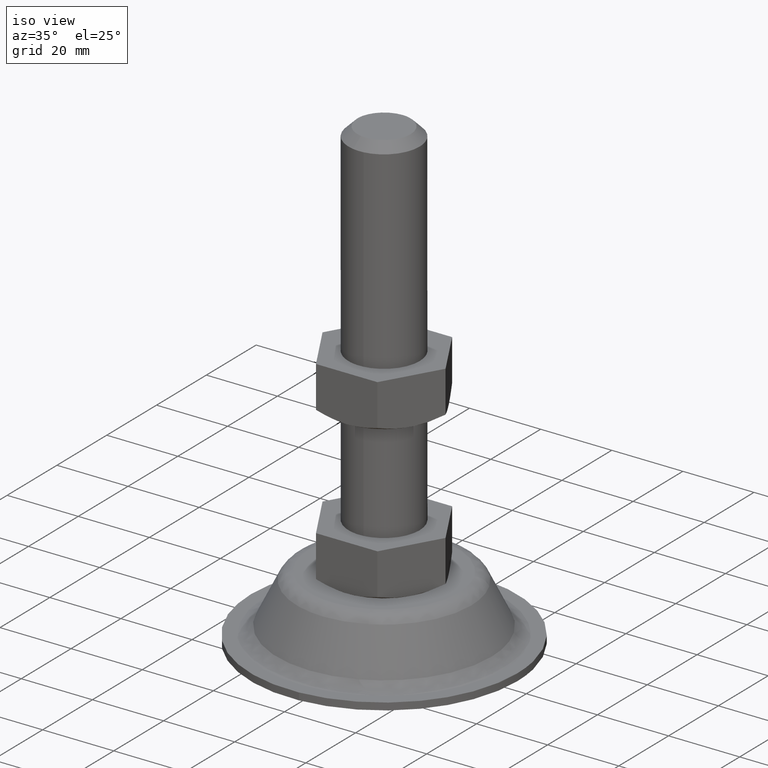
[diagram: clean part render]
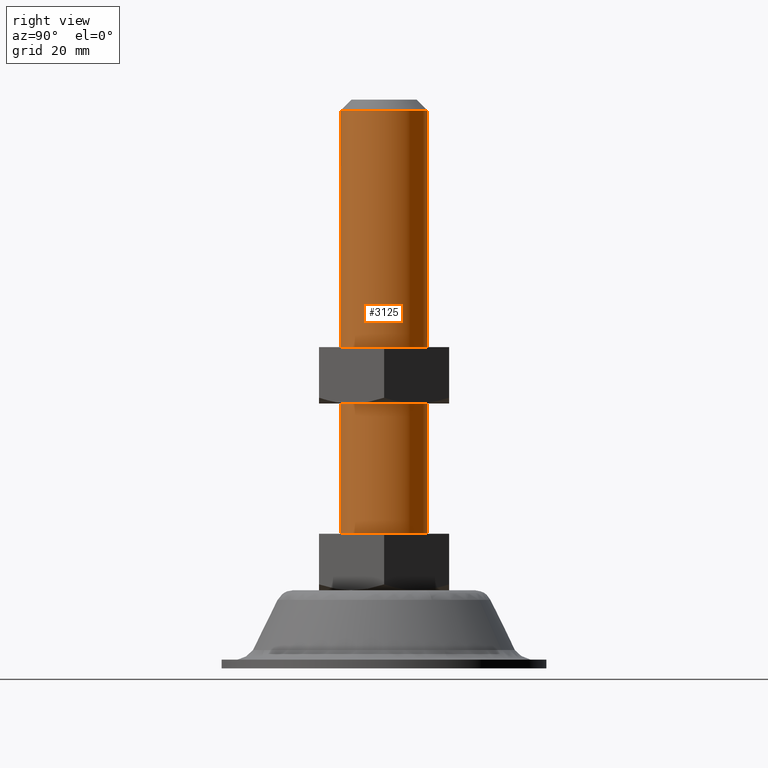
[diagram: tour spotlight — one face highlighted and labeled with its STEP entity id]
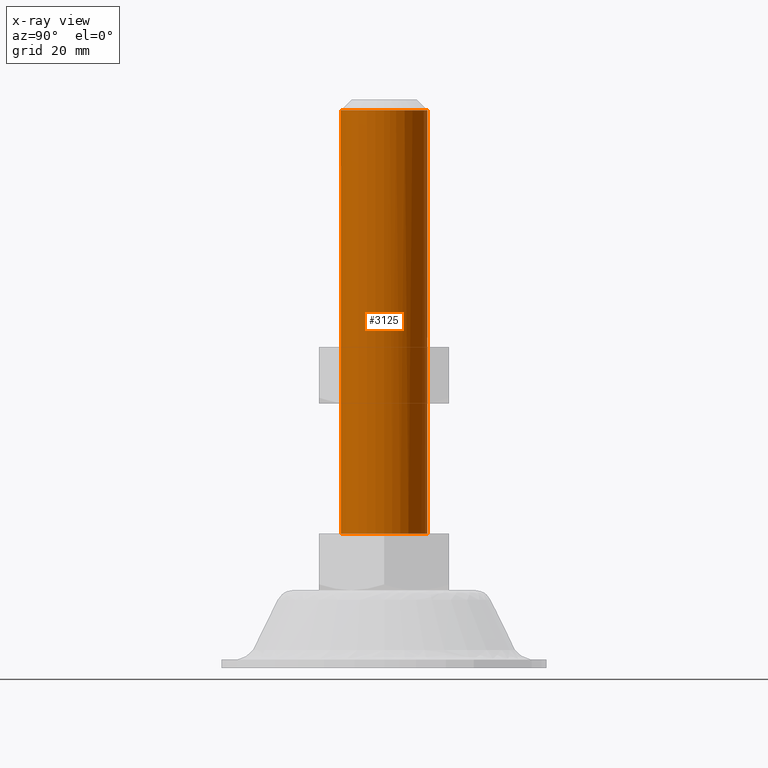
[diagram: x-ray of the same camera — body ghosted, this tour face saturated]
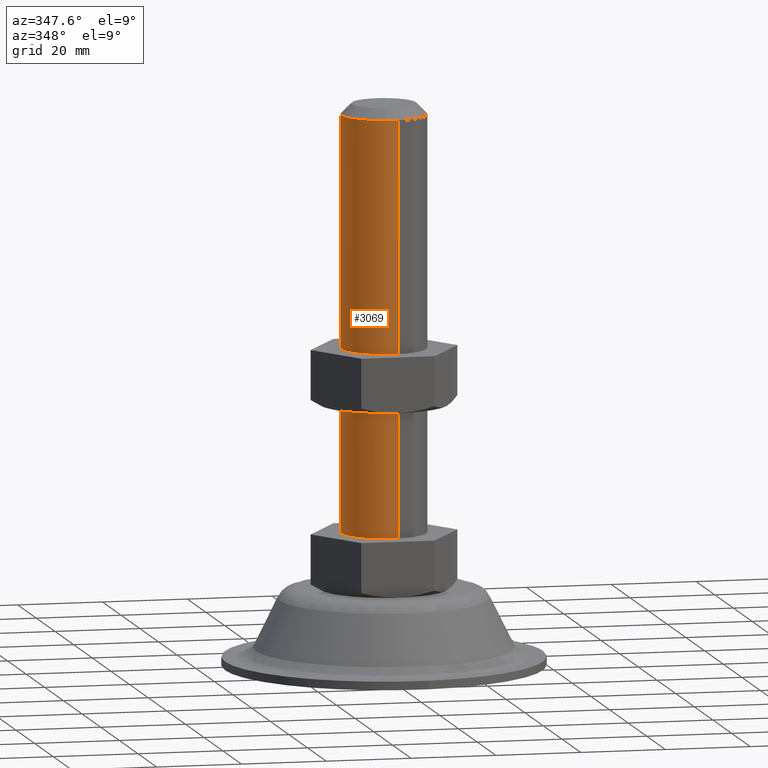
[diagram: tour spotlight — one face highlighted and labeled with its STEP entity id]
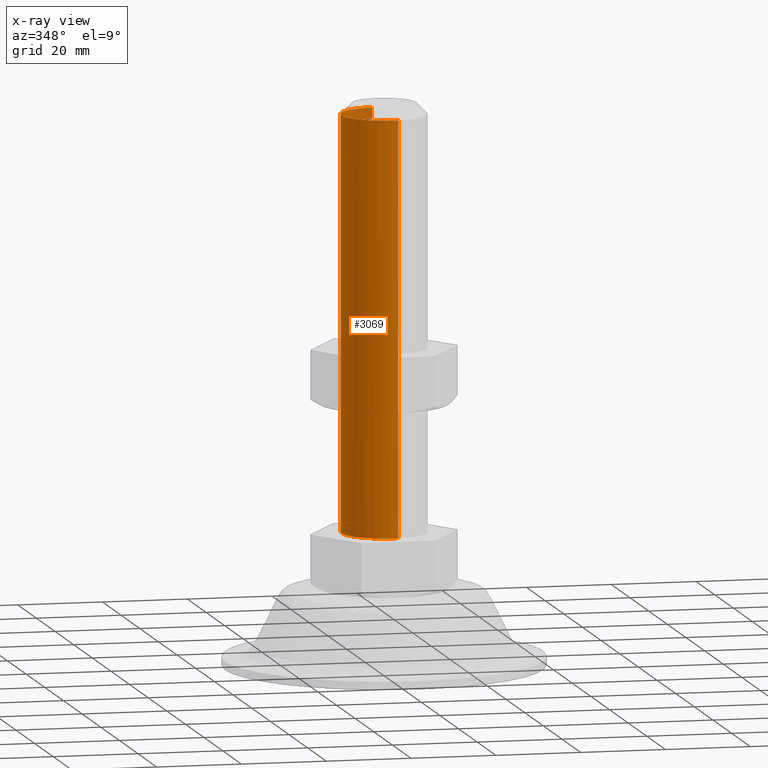
[diagram: x-ray of the same camera — body ghosted, this tour face saturated]
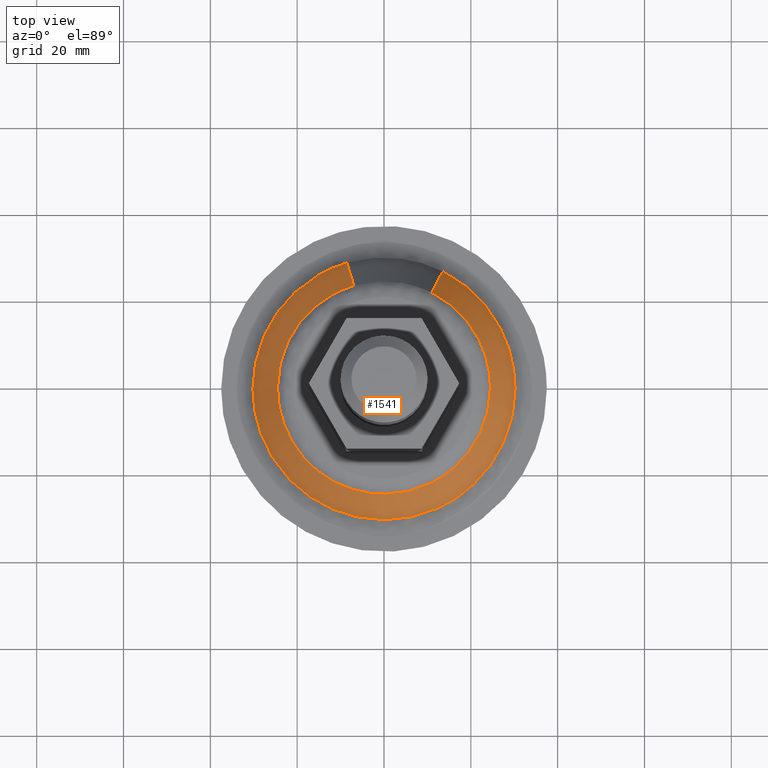
[diagram: tour spotlight — one face highlighted and labeled with its STEP entity id]
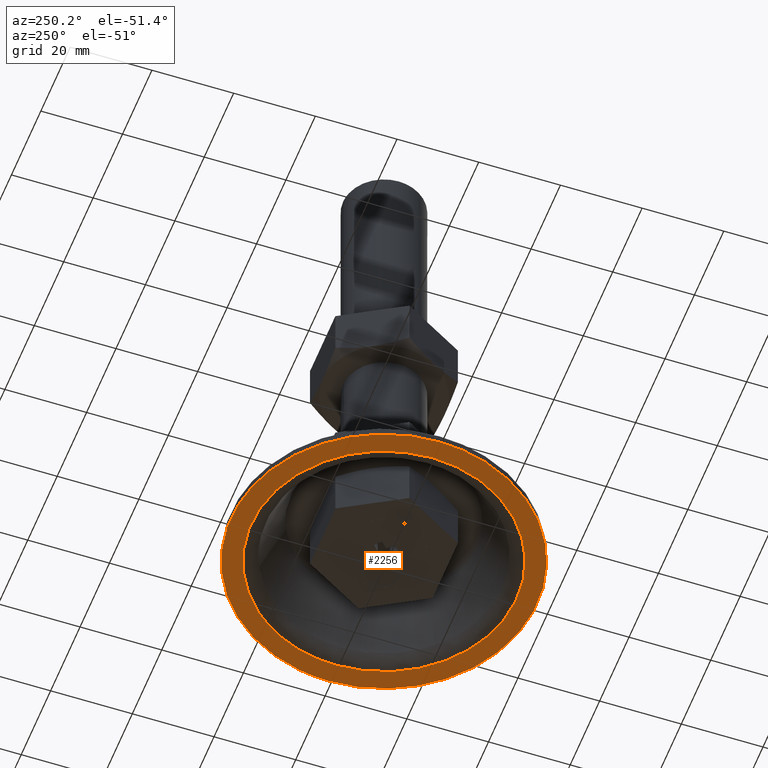
[diagram: tour spotlight — one face highlighted and labeled with its STEP entity id]
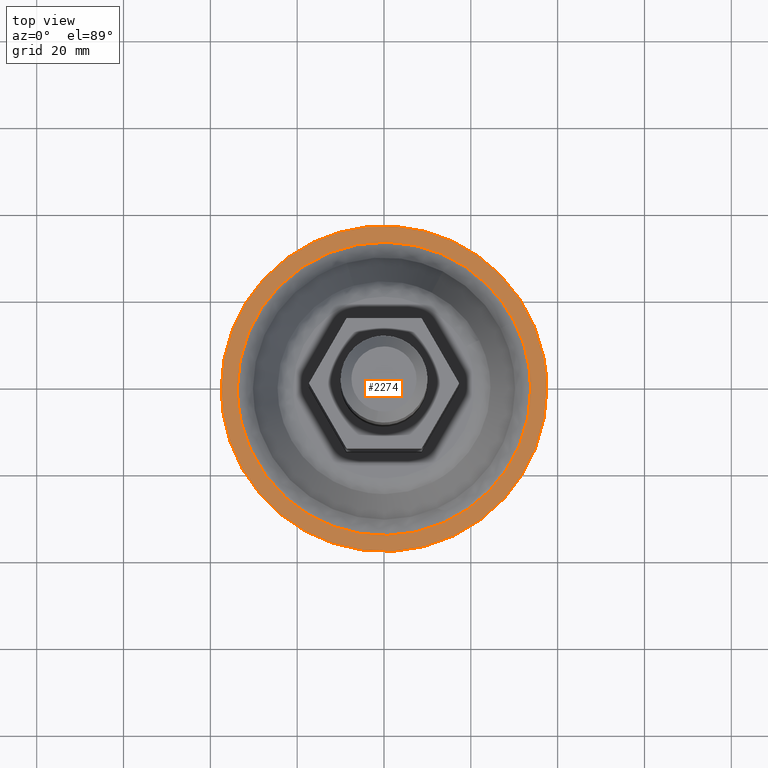
[diagram: tour spotlight — one face highlighted and labeled with its STEP entity id]
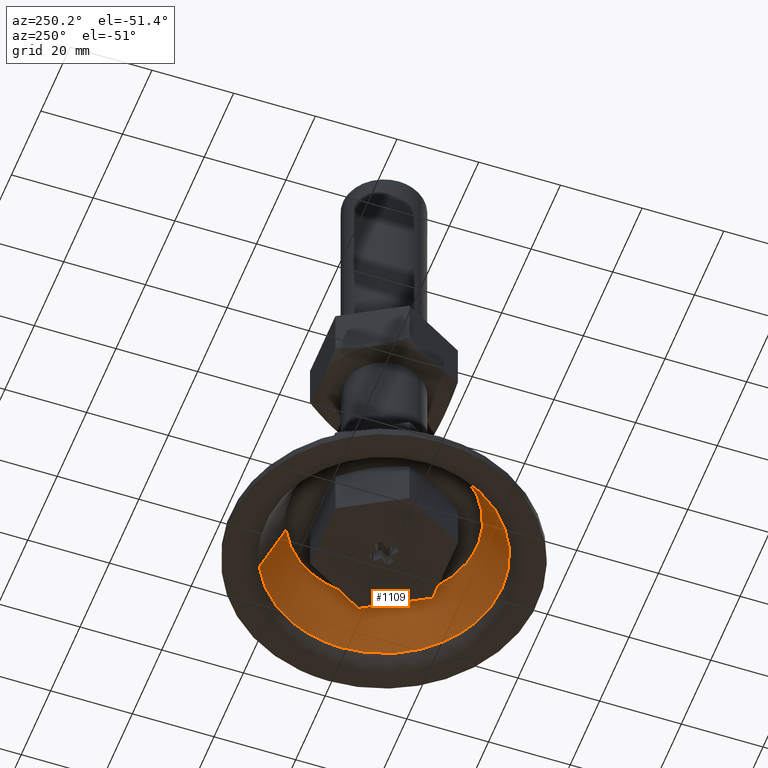
[diagram: tour spotlight — one face highlighted and labeled with its STEP entity id]
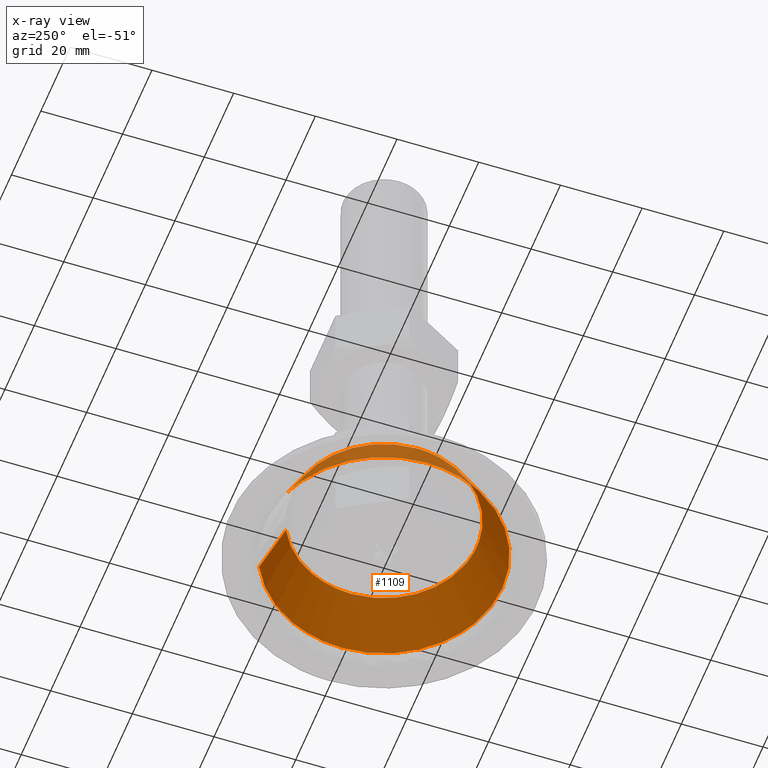
[diagram: x-ray of the same camera — body ghosted, this tour face saturated]
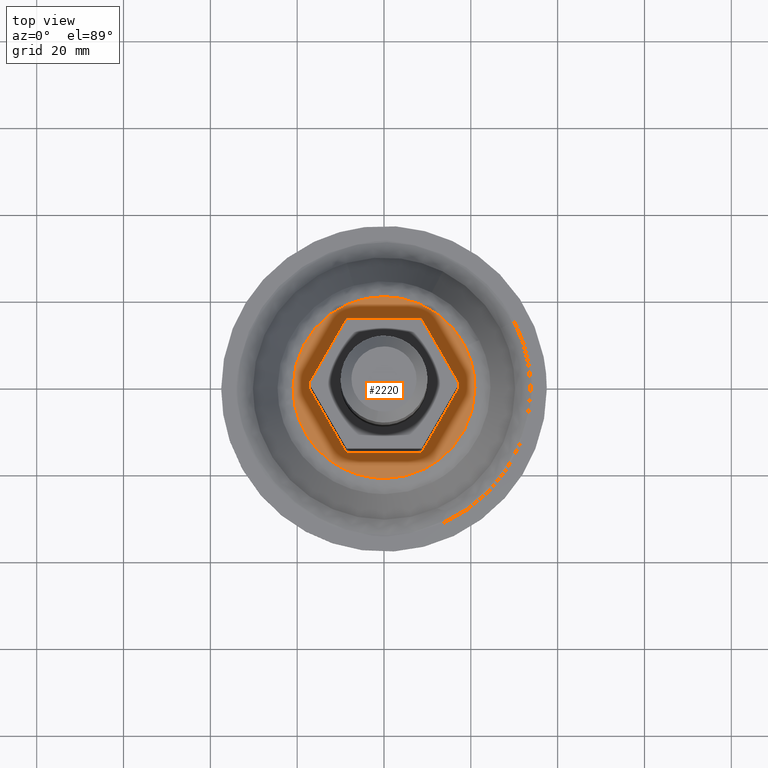
[diagram: tour spotlight — one face highlighted and labeled with its STEP entity id]
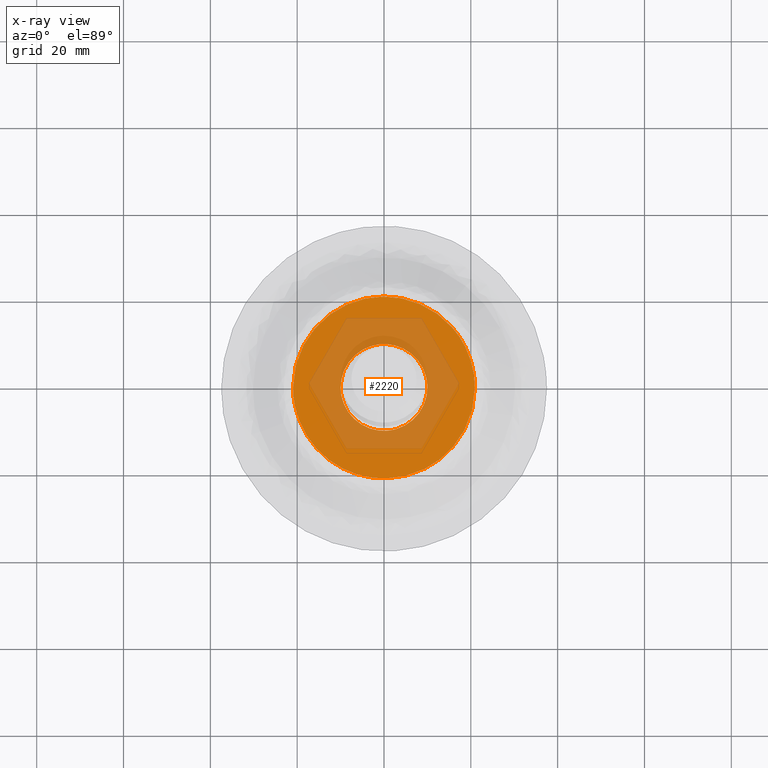
[diagram: x-ray of the same camera — body ghosted, this tour face saturated]
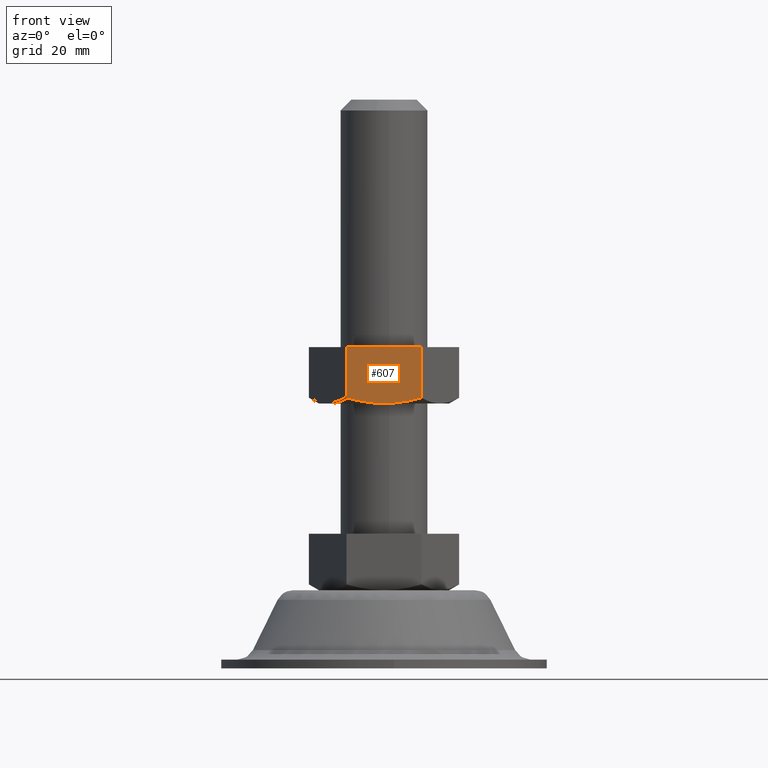
[diagram: tour spotlight — one face highlighted and labeled with its STEP entity id]
A machine part: a face-by-face anatomy tour. The part has 83 B-rep faces; the first image is the clean iso view, then the 8 largest visible faces are spotlighted one at a time (largest first), each with its STEP entity span.

Face 1 — right view, entity #3125. An x-ray twin of the same camera follows (body ghosted, this face saturated) — the face is partly hidden behind the body. In plain terms, the highlighted face is a freeform B-spline surface patch.
Definition (entity closure, byte-faithful):
#2856=CARTESIAN_POINT('',(0.087265355858830,9.999619230753307,128.499999999880710));
#2857=VERTEX_POINT('',#2856);
#2863=CARTESIAN_POINT('',(-0.610485395425955,9.981347984213935,128.500000000000000));
#2864=VERTEX_POINT('',#2863);
#2865=CARTESIAN_POINT('',(-0.610485395425955,9.981347984213935,128.500000000000030));
#2866=CARTESIAN_POINT('',(-0.305527633063491,10.000000000000002,128.500000000000030));
#2867=CARTESIAN_POINT('',(0.0,10.0,128.500000000000000));
#2868=CARTESIAN_POINT('',(0.043633509081091,10.0,128.500000000000000));
#2869=CARTESIAN_POINT('',(0.087265355858830,9.999619230753307,128.499999999880740));
#2877=(BOUNDED_CURVE()B_SPLINE_CURVE(2,(#2865,#2866,#2867,#2868,#2869),.UNSPECIFIED.,.F.,.U.)B_SPLINE_CURVE_WITH_KNOTS((3,2,3),(0.739332962239293,0.750000000000000,0.751539894365779),.UNSPECIFIED.)CURVE()GEOMETRIC_REPRESENTATION_ITEM()RATIONAL_B_SPLINE_CURVE((0.976072041667468,0.987502787900247,1.0,0.998195901530297,0.996414028029145))REPRESENTATION_ITEM(''));
#2878=EDGE_CURVE('',#2864,#2857,#2877,.T.);
#2918=CARTESIAN_POINT('',(1.180342346617756,-9.930095263630699,128.500000000000000));
#2919=VERTEX_POINT('',#2918);
#2935=CARTESIAN_POINT('',(10.0,0.0,128.500000000000000));
#2936=VERTEX_POINT('',#2935);
#2937=CARTESIAN_POINT('',(10.0,0.0,128.500000000000000));
#2938=CARTESIAN_POINT('',(10.0,-8.881745259423289,128.500000000000000));
#2939=CARTESIAN_POINT('',(1.180342346617757,-9.930095263630699,128.500000000000060));
#2947=(BOUNDED_CURVE()B_SPLINE_CURVE(2,(#2937,#2938,#2939),.UNSPECIFIED.,.F.,.U.)B_SPLINE_CURVE_WITH_KNOTS((3,3),(0.0,0.229562473513936),.UNSPECIFIED.)CURVE()GEOMETRIC_REPRESENTATION_ITEM()RATIONAL_B_SPLINE_CURVE((1.0,0.731050832854901,0.956026754184538))REPRESENTATION_ITEM(''));
#2948=EDGE_CURVE('',#2936,#2919,#2947,.T.);
#2950=CARTESIAN_POINT('',(0.087265355858830,9.999619230753307,128.499999999880710));
#2951=CARTESIAN_POINT('',(10.0,9.913112104216737,128.499999999999970));
#2952=CARTESIAN_POINT('',(10.0,0.0,128.500000000000000));
#2960=(BOUNDED_CURVE()B_SPLINE_CURVE(2,(#2950,#2951,#2952),.UNSPECIFIED.,.F.,.U.)B_SPLINE_CURVE_WITH_KNOTS((3,3),(0.751539894365780,1.0),.UNSPECIFIED.)CURVE()GEOMETRIC_REPRESENTATION_ITEM()RATIONAL_B_SPLINE_CURVE((0.996414028029143,0.708910879656251,1.0))REPRESENTATION_ITEM(''));
#2961=EDGE_CURVE('',#2857,#2936,#2960,.T.);
#3020=CARTESIAN_POINT('',(1.180342346617757,-9.930095263630697,31.000000000000011));
#3021=VERTEX_POINT('',#3020);
#3039=CARTESIAN_POINT('',(1.180342346617756,-9.930095263630699,128.500000000000000));
#3040=CARTESIAN_POINT('',(1.180342346617757,-9.930095263630697,31.000000000000011));
#3041=QUASI_UNIFORM_CURVE('',1,(#3039,#3040),.UNSPECIFIED.,.F.,.U.);
#3042=EDGE_CURVE('',#2919,#3021,#3041,.T.);
#3047=CARTESIAN_POINT('',(-0.610485395425955,9.981347984213935,31.0));
#3048=VERTEX_POINT('',#3047);
#3049=CARTESIAN_POINT('',(-0.610485395425955,9.981347984213935,128.500000000000000));
#3050=CARTESIAN_POINT('',(-0.610485395425955,9.981347984213935,31.0));
#3051=QUASI_UNIFORM_CURVE('',1,(#3049,#3050),.UNSPECIFIED.,.F.,.U.);
#3052=EDGE_CURVE('',#2864,#3048,#3051,.T.);
#3070=CARTESIAN_POINT('',(-0.610485395348570,9.981347984218667,130.937500000000000));
#3071=CARTESIAN_POINT('',(9.370862588870097,10.591833379567237,130.937500000000030));
#3072=CARTESIAN_POINT('',(9.981347984218667,0.610485395348570,130.937500000000000));
#3073=CARTESIAN_POINT('',(10.557861967325275,-8.815434908395007,130.937500000000030));
#3074=CARTESIAN_POINT('',(1.180342346567585,-9.930095263636664,130.937500000000090));
#3075=CARTESIAN_POINT('',(-0.610485395348570,9.981347984218667,28.501562499999991));
#3076=CARTESIAN_POINT('',(9.370862588870097,10.591833379567237,28.501562499999984));
#3077=CARTESIAN_POINT('',(9.981347984218667,0.610485395348570,28.501562499999991));
#3078=CARTESIAN_POINT('',(10.557861967325275,-8.815434908395007,28.501562499999984));
#3079=CARTESIAN_POINT('',(1.180342346567585,-9.930095263636664,28.501562499999995));
#3087=(BOUNDED_SURFACE()B_SPLINE_SURFACE(2,1,((#3070,#3075),(#3071,#3076),(#3072,#3077),(#3073,#3078),(#3074,#3079)),.UNSPECIFIED.,.F.,.F.,.U.)B_SPLINE_SURFACE_WITH_KNOTS((3,2,3),(2,2),(0.0,16.568542494923800,32.474343290050641),(0.0,102.435937500000090),.UNSPECIFIED.)GEOMETRIC_REPRESENTATION_ITEM()RATIONAL_B_SPLINE_SURFACE(((1.0,1.0),(0.707106781186548,0.707106781186548),(1.0,1.0),(0.718822509939086,0.718822509939086),(0.977505800795127,0.977505800795127)))REPRESENTATION_ITEM('')SURFACE());
#3088=CARTESIAN_POINT('',(10.0,0.0,31.0));
#3089=VERTEX_POINT('',#3088);
#3090=CARTESIAN_POINT('',(10.0,0.0,31.0));
#3091=CARTESIAN_POINT('',(10.0,-8.881745259423289,31.0));
#3092=CARTESIAN_POINT('',(1.180342346617757,-9.930095263630697,31.000000000000007));
#3100=(BOUNDED_CURVE()B_SPLINE_CURVE(2,(#3090,#3091,#3092),.UNSPECIFIED.,.F.,.U.)B_SPLINE_CURVE_WITH_KNOTS((3,3),(0.0,0.229562473513936),.UNSPECIFIED.)CURVE()GEOMETRIC_REPRESENTATION_ITEM()RATIONAL_B_SPLINE_CURVE((1.0,0.731050832854901,0.956026754184538))REPRESENTATION_ITEM(''));
#3101=EDGE_CURVE('',#3089,#3021,#3100,.T.);
#3102=ORIENTED_EDGE('',*,*,#3101,.F.);
#3103=CARTESIAN_POINT('',(-0.610485395425955,9.981347984213935,31.000000000000007));
#3104=CARTESIAN_POINT('',(-0.305527633063491,10.000000000000002,31.000000000000004));
#3105=CARTESIAN_POINT('',(0.0,10.0,31.0));
#3106=CARTESIAN_POINT('',(10.000000000000002,10.000000000000002,31.000000000000007));
#3107=CARTESIAN_POINT('',(10.0,0.0,31.0));
#3115=(BOUNDED_CURVE()B_SPLINE_CURVE(2,(#3103,#3104,#3105,#3106,#3107),.UNSPECIFIED.,.F.,.U.)B_SPLINE_CURVE_WITH_KNOTS((3,2,3),(0.739332962239293,0.750000000000000,1.0),.UNSPECIFIED.)CURVE()GEOMETRIC_REPRESENTATION_ITEM()RATIONAL_B_SPLINE_CURVE((0.976072041667468,0.987502787900247,1.0,0.707106781186548,1.0))REPRESENTATION_ITEM(''));
#3116=EDGE_CURVE('',#3048,#3089,#3115,.T.);
#3117=ORIENTED_EDGE('',*,*,#3116,.F.);
#3118=ORIENTED_EDGE('',*,*,#3052,.F.);
#3119=ORIENTED_EDGE('',*,*,#2878,.T.);
#3120=ORIENTED_EDGE('',*,*,#2961,.T.);
#3121=ORIENTED_EDGE('',*,*,#2948,.T.);
#3122=ORIENTED_EDGE('',*,*,#3042,.T.);
#3123=EDGE_LOOP('',(#3102,#3117,#3118,#3119,#3120,#3121,#3122));
#3124=FACE_OUTER_BOUND('',#3123,.T.);
#3125=ADVANCED_FACE('',(#3124),#3087,.T.);

Face 2 — auxiliary view, entity #3069. An x-ray twin of the same camera follows (body ghosted, this face saturated) — the face is partly hidden behind the body. In plain terms, the highlighted face is a freeform B-spline surface patch.
Definition (entity closure, byte-faithful):
#2800=CARTESIAN_POINT('',(-1.831236289819837,-9.830898923867482,128.499999999977400));
#2801=VERTEX_POINT('',#2800);
#2802=CARTESIAN_POINT('',(-10.0,0.0,128.500000000000000));
#2803=VERTEX_POINT('',#2802);
#2804=CARTESIAN_POINT('',(-1.831236289819838,-9.830898923867482,128.499999999977430));
#2805=CARTESIAN_POINT('',(-10.0,-8.309274434930446,128.500000000000000));
#2806=CARTESIAN_POINT('',(-10.0,0.0,128.500000000000000));
#2814=(BOUNDED_CURVE()B_SPLINE_CURVE(2,(#2804,#2805,#2806),.UNSPECIFIED.,.F.,.U.)B_SPLINE_CURVE_WITH_KNOTS((3,3),(0.281445263719383,0.500000000000000),.UNSPECIFIED.)CURVE()GEOMETRIC_REPRESENTATION_ITEM()RATIONAL_B_SPLINE_CURVE((0.935586817225927,0.743947199215380,1.0))REPRESENTATION_ITEM(''));
#2815=EDGE_CURVE('',#2801,#2803,#2814,.T.);
#2863=CARTESIAN_POINT('',(-0.610485395425955,9.981347984213935,128.500000000000000));
#2864=VERTEX_POINT('',#2863);
#2880=CARTESIAN_POINT('',(-10.0,0.0,128.500000000000000));
#2881=CARTESIAN_POINT('',(-10.0,9.407060668910859,128.500000000000000));
#2882=CARTESIAN_POINT('',(-0.610485395425955,9.981347984213935,128.499999999999970));
#2890=(BOUNDED_CURVE()B_SPLINE_CURVE(2,(#2880,#2881,#2882),.UNSPECIFIED.,.F.,.U.)B_SPLINE_CURVE_WITH_KNOTS((3,3),(0.500000000000000,0.739332962239294),.UNSPECIFIED.)CURVE()GEOMETRIC_REPRESENTATION_ITEM()RATIONAL_B_SPLINE_CURVE((1.0,0.719603993286299,0.976072041667470))REPRESENTATION_ITEM(''));
#2891=EDGE_CURVE('',#2803,#2864,#2890,.T.);
#2918=CARTESIAN_POINT('',(1.180342346617756,-9.930095263630699,128.500000000000000));
#2919=VERTEX_POINT('',#2918);
#2920=CARTESIAN_POINT('',(1.180342346617757,-9.930095263630699,128.500000000000000));
#2921=CARTESIAN_POINT('',(0.592241196569803,-10.0,128.500000000000000));
#2922=CARTESIAN_POINT('',(0.0,-10.0,128.500000000000000));
#2923=CARTESIAN_POINT('',(-0.923425759485023,-10.000000000000002,128.500000000000000));
#2924=CARTESIAN_POINT('',(-1.831236289819837,-9.830898923867482,128.499999999977350));
#2932=(BOUNDED_CURVE()B_SPLINE_CURVE(2,(#2920,#2921,#2922,#2923,#2924),.UNSPECIFIED.,.F.,.U.)B_SPLINE_CURVE_WITH_KNOTS((3,2,3),(0.229562473513936,0.250000000000000,0.281445263719383),.UNSPECIFIED.)CURVE()GEOMETRIC_REPRESENTATION_ITEM()RATIONAL_B_SPLINE_CURVE((0.956026754184538,0.976055948331647,1.0,0.963159581971168,0.935586817225928))REPRESENTATION_ITEM(''));
#2933=EDGE_CURVE('',#2919,#2801,#2932,.T.);
#2998=CARTESIAN_POINT('',(1.180342346567585,-9.930095263636664,130.937500000000090));
#2999=CARTESIAN_POINT('',(0.896147286379777,-9.963876154486057,130.937500000000060));
#3000=CARTESIAN_POINT('',(0.610485395348570,-9.981347984218667,130.937500000000000));
#3001=CARTESIAN_POINT('',(-9.370862588870097,-10.591833379567237,130.937500000000030));
#3002=CARTESIAN_POINT('',(-9.981347984218667,-0.610485395348570,130.937500000000000));
#3003=CARTESIAN_POINT('',(-10.591833379567237,9.370862588870097,130.937500000000030));
#3004=CARTESIAN_POINT('',(-0.610485395348570,9.981347984218667,130.937500000000000));
#3005=CARTESIAN_POINT('',(1.180342346567585,-9.930095263636664,28.501562499999995));
#3006=CARTESIAN_POINT('',(0.896147286379777,-9.963876154486057,28.501562499999991));
#3007=CARTESIAN_POINT('',(0.610485395348570,-9.981347984218667,28.501562499999991));
#3008=CARTESIAN_POINT('',(-9.370862588870097,-10.591833379567237,28.501562499999984));
#3009=CARTESIAN_POINT('',(-9.981347984218667,-0.610485395348570,28.501562499999991));
#3010=CARTESIAN_POINT('',(-10.591833379567237,9.370862588870097,28.501562499999984));
#3011=CARTESIAN_POINT('',(-0.610485395348570,9.981347984218667,28.501562499999991));
#3019=(BOUNDED_SURFACE()B_SPLINE_SURFACE(2,1,((#2998,#3005),(#2999,#3006),(#3000,#3007),(#3001,#3008),(#3002,#3009),(#3003,#3010),(#3004,#3011)),.UNSPECIFIED.,.F.,.F.,.U.)B_SPLINE_SURFACE_WITH_KNOTS((3,2,2,3),(2,2),(0.0,0.662741699796953,17.231284194720750,33.799826689644547),(0.0,102.435937500000090),.UNSPECIFIED.)GEOMETRIC_REPRESENTATION_ITEM()RATIONAL_B_SPLINE_SURFACE(((0.977505800795127,0.977505800795127),(0.988284271247462,0.988284271247462),(1.0,1.0),(0.707106781186548,0.707106781186548),(1.0,1.0),(0.707106781186548,0.707106781186548),(1.0,1.0)))REPRESENTATION_ITEM('')SURFACE());
#3020=CARTESIAN_POINT('',(1.180342346617757,-9.930095263630697,31.000000000000011));
#3021=VERTEX_POINT('',#3020);
#3022=CARTESIAN_POINT('',(-10.0,0.0,31.0));
#3023=VERTEX_POINT('',#3022);
#3024=CARTESIAN_POINT('',(1.180342346617757,-9.930095263630697,31.000000000000014));
#3025=CARTESIAN_POINT('',(0.592241196569804,-10.000000000000002,31.000000000000007));
#3026=CARTESIAN_POINT('',(0.0,-10.0,31.0));
#3027=CARTESIAN_POINT('',(-10.000000000000002,-10.000000000000002,31.000000000000007));
#3028=CARTESIAN_POINT('',(-10.0,0.0,31.0));
#3036=(BOUNDED_CURVE()B_SPLINE_CURVE(2,(#3024,#3025,#3026,#3027,#3028),.UNSPECIFIED.,.F.,.U.)B_SPLINE_CURVE_WITH_KNOTS((3,2,3),(0.229562473513936,0.250000000000000,0.500000000000000),.UNSPECIFIED.)CURVE()GEOMETRIC_REPRESENTATION_ITEM()RATIONAL_B_SPLINE_CURVE((0.956026754184538,0.976055948331647,1.0,0.707106781186548,1.0))REPRESENTATION_ITEM(''));
#3037=EDGE_CURVE('',#3021,#3023,#3036,.T.);
#3038=ORIENTED_EDGE('',*,*,#3037,.F.);
#3039=CARTESIAN_POINT('',(1.180342346617756,-9.930095263630699,128.500000000000000));
#3040=CARTESIAN_POINT('',(1.180342346617757,-9.930095263630697,31.000000000000011));
#3041=QUASI_UNIFORM_CURVE('',1,(#3039,#3040),.UNSPECIFIED.,.F.,.U.);
#3042=EDGE_CURVE('',#2919,#3021,#3041,.T.);
#3043=ORIENTED_EDGE('',*,*,#3042,.F.);
#3044=ORIENTED_EDGE('',*,*,#2933,.T.);
#3045=ORIENTED_EDGE('',*,*,#2815,.T.);
#3046=ORIENTED_EDGE('',*,*,#2891,.T.);
#3047=CARTESIAN_POINT('',(-0.610485395425955,9.981347984213935,31.0));
#3048=VERTEX_POINT('',#3047);
#3049=CARTESIAN_POINT('',(-0.610485395425955,9.981347984213935,128.500000000000000));
#3050=CARTESIAN_POINT('',(-0.610485395425955,9.981347984213935,31.0));
#3051=QUASI_UNIFORM_CURVE('',1,(#3049,#3050),.UNSPECIFIED.,.F.,.U.);
#3052=EDGE_CURVE('',#2864,#3048,#3051,.T.);
#3053=ORIENTED_EDGE('',*,*,#3052,.T.);
#3054=CARTESIAN_POINT('',(-10.0,0.0,31.0));
#3055=CARTESIAN_POINT('',(-10.0,9.407060668910859,31.000000000000007));
#3056=CARTESIAN_POINT('',(-0.610485395425955,9.981347984213935,31.000000000000004));
#3064=(BOUNDED_CURVE()B_SPLINE_CURVE(2,(#3054,#3055,#3056),.UNSPECIFIED.,.F.,.U.)B_SPLINE_CURVE_WITH_KNOTS((3,3),(0.500000000000000,0.739332962239294),.UNSPECIFIED.)CURVE()GEOMETRIC_REPRESENTATION_ITEM()RATIONAL_B_SPLINE_CURVE((1.0,0.719603993286299,0.976072041667470))REPRESENTATION_ITEM(''));
#3065=EDGE_CURVE('',#3023,#3048,#3064,.T.);
#3066=ORIENTED_EDGE('',*,*,#3065,.F.);
#3067=EDGE_LOOP('',(#3038,#3043,#3044,#3045,#3046,#3053,#3066));
#3068=FACE_OUTER_BOUND('',#3067,.T.);
#3069=ADVANCED_FACE('',(#3068),#3019,.T.);

Face 3 — top view, entity #1541. In plain terms, the highlighted face is a freeform B-spline surface patch.
Definition (entity closure, byte-faithful):
#1345=CARTESIAN_POINT('',(10.920433999638682,21.806121160805464,16.051097008100950));
#1346=CARTESIAN_POINT('',(20.379034342566019,17.069285113156791,16.051097008100957));
#1347=CARTESIAN_POINT('',(23.383464810625622,6.926497835878225,16.051097008100950));
#1348=CARTESIAN_POINT('',(30.309962646503841,-16.456966974747399,16.051097008100953));
#1349=CARTESIAN_POINT('',(6.926497835878225,-23.383464810625622,16.051097008100950));
#1350=CARTESIAN_POINT('',(-16.456966974747399,-30.309962646503841,16.051097008100953));
#1351=CARTESIAN_POINT('',(-23.383464810625622,-6.926497835878225,16.051097008100950));
#1352=CARTESIAN_POINT('',(-30.309962646503841,16.456966974747399,16.051097008100953));
#1353=CARTESIAN_POINT('',(-6.926497835878225,23.383464810625622,16.051097008100950));
#1354=CARTESIAN_POINT('',(13.582814498773800,27.122410947660732,3.941699304192804));
#1355=CARTESIAN_POINT('',(25.347403147931058,21.230743514988596,3.941699304192805));
#1356=CARTESIAN_POINT('',(29.084307901301479,8.615164491997748,3.941699304192804));
#1357=CARTESIAN_POINT('',(37.699472393299231,-20.469143409303737,3.941699304192804));
#1358=CARTESIAN_POINT('',(8.615164491997748,-29.084307901301479,3.941699304192804));
#1359=CARTESIAN_POINT('',(-20.469143409303737,-37.699472393299231,3.941699304192804));
#1360=CARTESIAN_POINT('',(-29.084307901301479,-8.615164491997748,3.941699304192804));
#1361=CARTESIAN_POINT('',(-37.699472393299231,20.469143409303737,3.941699304192804));
#1362=CARTESIAN_POINT('',(-8.615164491997748,29.084307901301479,3.941699304192804));
#1370=(BOUNDED_SURFACE()B_SPLINE_SURFACE(2,1,((#1345,#1354),(#1346,#1355),(#1347,#1356),(#1348,#1357),(#1349,#1358),(#1350,#1359),(#1351,#1360),(#1352,#1361),(#1353,#1362)),.UNSPECIFIED.,.F.,.F.,.U.)B_SPLINE_SURFACE_WITH_KNOTS((3,2,2,2,3),(2,2),(0.0,26.134212554718719,76.392313621485485,126.650414688252300,176.908515755019010),(0.0,13.490319483667260),.UNSPECIFIED.)GEOMETRIC_REPRESENTATION_ITEM()RATIONAL_B_SPLINE_SURFACE(((0.853787705168325,0.853787705168325),(0.847695526217005,0.847695526217005),(1.0,1.0),(0.707106781186548,0.707106781186548),(1.0,1.0),(0.707106781186548,0.707106781186548),(1.0,1.0),(0.707106781186548,0.707106781186548),(1.0,1.0)))REPRESENTATION_ITEM('')SURFACE());
#1371=CARTESIAN_POINT('',(13.517878388912040,26.992745342773890,4.237050468396918));
#1372=VERTEX_POINT('',#1371);
#1373=CARTESIAN_POINT('',(26.811445477820339,13.873994691087860,4.237050467702758));
#1374=VERTEX_POINT('',#1373);
#1375=CARTESIAN_POINT('',(13.517878388912045,26.992745342773894,4.237050468396918));
#1376=CARTESIAN_POINT('',(22.298365181543343,22.595506338422606,4.237050468164616));
#1377=CARTESIAN_POINT('',(26.811445477820339,13.873994691087857,4.237050467702759));
#1385=(BOUNDED_CURVE()B_SPLINE_CURVE(2,(#1375,#1376,#1377),.UNSPECIFIED.,.F.,.U.)B_SPLINE_CURVE_WITH_KNOTS((3,3),(0.326127052924805,0.421825371002742),.UNSPECIFIED.)CURVE()GEOMETRIC_REPRESENTATION_ITEM()RATIONAL_B_SPLINE_CURVE((0.875940413897389,0.832104291764644,0.874103860135857))REPRESENTATION_ITEM(''));
#1386=EDGE_CURVE('',#1372,#1374,#1385,.T.);
#1387=ORIENTED_EDGE('',*,*,#1386,.F.);
#1388=CARTESIAN_POINT('',(10.983786301854231,21.932624189664441,15.762949531433030));
#1389=VERTEX_POINT('',#1388);
#1390=CARTESIAN_POINT('',(10.983786301854231,21.932624189664441,15.762949531433030));
#1391=CARTESIAN_POINT('',(13.517878388912040,26.992745342773890,4.237050468396918));
#1392=QUASI_UNIFORM_CURVE('',1,(#1390,#1391),.UNSPECIFIED.,.F.,.U.);
#1393=EDGE_CURVE('',#1389,#1372,#1392,.T.);
#1394=ORIENTED_EDGE('',*,*,#1393,.F.);
#1395=CARTESIAN_POINT('',(21.925249911092710,10.998499066040230,15.762949531445390));
#1396=VERTEX_POINT('',#1395);
#1397=CARTESIAN_POINT('',(10.983786301854234,21.932624189664441,15.762949531433037));
#1398=CARTESIAN_POINT('',(18.270965896765706,18.283228534961623,15.762949531439100));
#1399=CARTESIAN_POINT('',(21.925249911092706,10.998499066040228,15.762949531445397));
#1407=(BOUNDED_CURVE()B_SPLINE_CURVE(2,(#1397,#1398,#1399),.UNSPECIFIED.,.F.,.U.)B_SPLINE_CURVE_WITH_KNOTS((3,3),(0.326127052925012,0.423769062115704),.UNSPECIFIED.)CURVE()GEOMETRIC_REPRESENTATION_ITEM()RATIONAL_B_SPLINE_CURVE((0.875940413897200,0.831213953431449,0.875845342762707))REPRESENTATION_ITEM(''));
#1408=EDGE_CURVE('',#1389,#1396,#1407,.T.);
#1409=ORIENTED_EDGE('',*,*,#1408,.T.);
#1410=CARTESIAN_POINT('',(24.529238988803549,0.0,15.762949531433700));
#1411=VERTEX_POINT('',#1410);
#1412=CARTESIAN_POINT('',(21.925249911092710,10.998499066040228,15.762949531445388));
#1413=CARTESIAN_POINT('',(24.529238988803556,5.807507917921059,15.762949531433703));
#1414=CARTESIAN_POINT('',(24.529238988803549,0.0,15.762949531433700));
#1422=(BOUNDED_CURVE()B_SPLINE_CURVE(2,(#1412,#1413,#1414),.UNSPECIFIED.,.F.,.U.)B_SPLINE_CURVE_WITH_KNOTS((3,3),(0.423769062115704,0.500000000000000),.UNSPECIFIED.)CURVE()GEOMETRIC_REPRESENTATION_ITEM()RATIONAL_B_SPLINE_CURVE((0.875845342762707,0.910689900919600,1.0))REPRESENTATION_ITEM(''));
#1423=EDGE_CURVE('',#1396,#1411,#1422,.T.);
#1424=ORIENTED_EDGE('',*,*,#1423,.T.);
#1425=CARTESIAN_POINT('',(10.998499066033020,-21.925249911063101,15.762949531505869));
#1426=VERTEX_POINT('',#1425);
#1427=CARTESIAN_POINT('',(24.529238988803549,0.0,15.762949531433700));
#1428=CARTESIAN_POINT('',(24.529238988803556,-15.137740942807142,15.762949531433705));
#1429=CARTESIAN_POINT('',(10.998499066033018,-21.925249911063105,15.762949531505878));
#1437=(BOUNDED_CURVE()B_SPLINE_CURVE(2,(#1427,#1428,#1429),.UNSPECIFIED.,.F.,.U.)B_SPLINE_CURVE_WITH_KNOTS((3,3),(0.500000000000000,0.673769062115618),.UNSPECIFIED.)CURVE()GEOMETRIC_REPRESENTATION_ITEM()RATIONAL_B_SPLINE_CURVE((1.0,0.796416880267047,0.875845342762629))REPRESENTATION_ITEM(''));
#1438=EDGE_CURVE('',#1411,#1426,#1437,.T.);
#1439=ORIENTED_EDGE('',*,*,#1438,.T.);
#1440=CARTESIAN_POINT('',(-24.529238988803549,0.0,15.762949531433700));
#1441=VERTEX_POINT('',#1440);
#1442=CARTESIAN_POINT('',(10.998499066033018,-21.925249911063105,15.762949531505871));
#1443=CARTESIAN_POINT('',(5.807507917928271,-24.529238988803552,15.762949531433703));
#1444=CARTESIAN_POINT('',(0.0,-24.529238988803549,15.762949531433700));
#1445=CARTESIAN_POINT('',(-24.529238988803549,-24.529238988803549,15.762949531433700));
#1446=CARTESIAN_POINT('',(-24.529238988803549,0.0,15.762949531433700));
#1454=(BOUNDED_CURVE()B_SPLINE_CURVE(2,(#1442,#1443,#1444,#1445,#1446),.UNSPECIFIED.,.F.,.U.)B_SPLINE_CURVE_WITH_KNOTS((3,2,3),(0.673769062115617,0.750000000000000,1.0),.UNSPECIFIED.)CURVE()GEOMETRIC_REPRESENTATION_ITEM()RATIONAL_B_SPLINE_CURVE((0.875845342762628,0.910689900919499,1.0,0.707106781186547,1.0))REPRESENTATION_ITEM(''));
#1455=EDGE_CURVE('',#1426,#1441,#1454,.T.);
#1456=ORIENTED_EDGE('',*,*,#1455,.T.);
#1457=CARTESIAN_POINT('',(-6.966677018124205,23.519117190267480,15.762953819341680));
#1458=VERTEX_POINT('',#1457);
#1459=CARTESIAN_POINT('',(-24.529238988803549,0.0,15.762949531433700));
#1460=CARTESIAN_POINT('',(-24.529238689827292,18.316852667902086,15.762951675387692));
#1461=CARTESIAN_POINT('',(-6.966677018124205,23.519117190267480,15.762953819341678));
#1469=(BOUNDED_CURVE()B_SPLINE_CURVE(2,(#1459,#1460,#1461),.UNSPECIFIED.,.F.,.U.)B_SPLINE_CURVE_WITH_KNOTS((3,3),(0.0,0.201641535167744),.UNSPECIFIED.)CURVE()GEOMETRIC_REPRESENTATION_ITEM()RATIONAL_B_SPLINE_CURVE((1.0,0.763762246872934,0.908607239386829))REPRESENTATION_ITEM(''));
#1470=EDGE_CURVE('',#1441,#1458,#1469,.T.);
#1471=ORIENTED_EDGE('',*,*,#1470,.T.);
#1472=CARTESIAN_POINT('',(-8.573977500293870,28.945262947457611,4.237050468561552));
#1473=VERTEX_POINT('',#1472);
#1474=CARTESIAN_POINT('',(-6.966677018124205,23.519117190267480,15.762953819341680));
#1475=CARTESIAN_POINT('',(-8.573977500293870,28.945262947457611,4.237050468561552));
#1476=QUASI_UNIFORM_CURVE('',1,(#1474,#1475),.UNSPECIFIED.,.F.,.U.);
#1477=EDGE_CURVE('',#1458,#1473,#1476,.T.);
#1478=ORIENTED_EDGE('',*,*,#1477,.T.);
#1479=CARTESIAN_POINT('',(-30.188430520198551,0.0,4.237050468566710));
#1480=VERTEX_POINT('',#1479);
#1481=CARTESIAN_POINT('',(-30.188430520198551,0.0,4.237050468566710));
#1482=CARTESIAN_POINT('',(-30.188430520198551,22.542770276688945,4.237050468566710));
#1483=CARTESIAN_POINT('',(-8.573977500293870,28.945262947457618,4.237050468561553));
#1491=(BOUNDED_CURVE()B_SPLINE_CURVE(2,(#1481,#1482,#1483),.UNSPECIFIED.,.F.,.U.)B_SPLINE_CURVE_WITH_KNOTS((3,3),(0.0,0.201641517065156),.UNSPECIFIED.)CURVE()GEOMETRIC_REPRESENTATION_ITEM()RATIONAL_B_SPLINE_CURVE((1.0,0.763762268081435,0.908607213379599))REPRESENTATION_ITEM(''));
#1492=EDGE_CURVE('',#1480,#1473,#1491,.T.);
#1493=ORIENTED_EDGE('',*,*,#1492,.F.);
#1494=CARTESIAN_POINT('',(12.317877356289760,-27.561045602902830,4.237050467992217));
#1495=VERTEX_POINT('',#1494);
#1496=CARTESIAN_POINT('',(12.317877356289754,-27.561045602902830,4.237050467992218));
#1497=CARTESIAN_POINT('',(6.439147325479319,-30.188430520198562,4.237050468566709));
#1498=CARTESIAN_POINT('',(0.0,-30.188430520198551,4.237050468566710));
#1499=CARTESIAN_POINT('',(-30.188430520198555,-30.188430520198555,4.237050468566710));
#1500=CARTESIAN_POINT('',(-30.188430520198551,0.0,4.237050468566710));
#1508=(BOUNDED_CURVE()B_SPLINE_CURVE(2,(#1496,#1497,#1498,#1499,#1500),.UNSPECIFIED.,.F.,.U.)B_SPLINE_CURVE_WITH_KNOTS((3,2,3),(0.680709483577636,0.750000000000000,1.0),.UNSPECIFIED.)CURVE()GEOMETRIC_REPRESENTATION_ITEM()RATIONAL_B_SPLINE_CURVE((0.882641638332103,0.918821110447229,1.0,0.707106781186547,1.0))REPRESENTATION_ITEM(''));
#1509=EDGE_CURVE('',#1495,#1480,#1508,.T.);
#1510=ORIENTED_EDGE('',*,*,#1509,.F.);
#1511=CARTESIAN_POINT('',(30.188430520198551,0.0,4.237050468566710));
#1512=VERTEX_POINT('',#1511);
#1513=CARTESIAN_POINT('',(30.188430520198551,0.0,4.237050468566710));
#1514=CARTESIAN_POINT('',(30.188430520198558,-19.574146798595859,4.237050468566711));
#1515=CARTESIAN_POINT('',(12.317877356289758,-27.561045602902833,4.237050467992218));
#1523=(BOUNDED_CURVE()B_SPLINE_CURVE(2,(#1513,#1514,#1515),.UNSPECIFIED.,.F.,.U.)B_SPLINE_CURVE_WITH_KNOTS((3,3),(0.500000000000000,0.680709483577635),.UNSPECIFIED.)CURVE()GEOMETRIC_REPRESENTATION_ITEM()RATIONAL_B_SPLINE_CURVE((1.0,0.788285670739319,0.882641638332102))REPRESENTATION_ITEM(''));
#1524=EDGE_CURVE('',#1512,#1495,#1523,.T.);
#1525=ORIENTED_EDGE('',*,*,#1524,.F.);
#1526=CARTESIAN_POINT('',(26.811445477820332,13.873994691087853,4.237050467702759));
#1527=CARTESIAN_POINT('',(30.188430520198558,7.347983086529182,4.237050468566710));
#1528=CARTESIAN_POINT('',(30.188430520198551,0.0,4.237050468566710));
#1536=(BOUNDED_CURVE()B_SPLINE_CURVE(2,(#1526,#1527,#1528),.UNSPECIFIED.,.F.,.U.)B_SPLINE_CURVE_WITH_KNOTS((3,3),(0.421825371002742,0.500000000000000),.UNSPECIFIED.)CURVE()GEOMETRIC_REPRESENTATION_ITEM()RATIONAL_B_SPLINE_CURVE((0.874103860135857,0.908412725133783,1.0))REPRESENTATION_ITEM(''));
#1537=EDGE_CURVE('',#1374,#1512,#1536,.T.);
#1538=ORIENTED_EDGE('',*,*,#1537,.F.);
#1539=EDGE_LOOP('',(#1387,#1394,#1409,#1424,#1439,#1456,#1471,#1478,#1493,#1510,#1525,#1538));
#1540=FACE_OUTER_BOUND('',#1539,.T.);
#1541=ADVANCED_FACE('',(#1540),#1370,.T.);

Face 4 — auxiliary view, entity #2256. In plain terms, the highlighted face is a freeform B-spline surface patch.
Definition (entity closure, byte-faithful):
#1181=CARTESIAN_POINT('',(-4.426249688722269,37.237861293204062,-1.821000E-012));
#1182=VERTEX_POINT('',#1181);
#1183=CARTESIAN_POINT('',(37.500000000000000,0.0,0.0));
#1184=VERTEX_POINT('',#1183);
#1185=CARTESIAN_POINT('',(-4.426249688722269,37.237861293204062,-1.821000E-012));
#1186=CARTESIAN_POINT('',(-2.220887251187811,37.500000000000000,0.0));
#1187=CARTESIAN_POINT('',(0.0,37.500000000000000,0.0));
#1188=CARTESIAN_POINT('',(37.500000000000000,37.500000000000000,0.0));
#1189=CARTESIAN_POINT('',(37.500000000000000,0.0,0.0));
#1197=(BOUNDED_CURVE()B_SPLINE_CURVE(2,(#1185,#1186,#1187,#1188,#1189),.UNSPECIFIED.,.F.,.U.)B_SPLINE_CURVE_WITH_KNOTS((3,2,3),(0.229562628327299,0.250000000000000,0.500000000000000),.UNSPECIFIED.)CURVE()GEOMETRIC_REPRESENTATION_ITEM()RATIONAL_B_SPLINE_CURVE((0.956027057625289,0.976056129706783,1.0,0.707106781186547,1.0))REPRESENTATION_ITEM(''));
#1198=EDGE_CURVE('',#1182,#1184,#1197,.T.);
#1239=CARTESIAN_POINT('',(2.289292554556552,-37.430056633658502,1.817792E-012));
#1240=VERTEX_POINT('',#1239);
#1246=CARTESIAN_POINT('',(37.500000000000000,0.0,0.0));
#1247=CARTESIAN_POINT('',(37.500000000000000,-35.276503643234932,0.0));
#1248=CARTESIAN_POINT('',(2.289292554556552,-37.430056633658495,1.817792E-012));
#1256=(BOUNDED_CURVE()B_SPLINE_CURVE(2,(#1246,#1247,#1248),.UNSPECIFIED.,.F.,.U.)B_SPLINE_CURVE_WITH_KNOTS((3,3),(0.500000000000000,0.739333089833301),.UNSPECIFIED.)CURVE()GEOMETRIC_REPRESENTATION_ITEM()RATIONAL_B_SPLINE_CURVE((1.0,0.719603843800621,0.976072315125869))REPRESENTATION_ITEM(''));
#1257=EDGE_CURVE('',#1184,#1240,#1256,.T.);
#1280=CARTESIAN_POINT('',(-37.500000000000000,0.0,0.0));
#1281=VERTEX_POINT('',#1280);
#1282=CARTESIAN_POINT('',(-37.500000000000000,0.0,0.0));
#1283=CARTESIAN_POINT('',(-37.500000000000000,33.306575447679485,0.0));
#1284=CARTESIAN_POINT('',(-4.426249688722269,37.237861293204062,-1.821000E-012));
#1292=(BOUNDED_CURVE()B_SPLINE_CURVE(2,(#1282,#1283,#1284),.UNSPECIFIED.,.F.,.U.)B_SPLINE_CURVE_WITH_KNOTS((3,3),(0.0,0.229562628327299),.UNSPECIFIED.)CURVE()GEOMETRIC_REPRESENTATION_ITEM()RATIONAL_B_SPLINE_CURVE((1.0,0.731050651479765,0.956027057625289))REPRESENTATION_ITEM(''));
#1293=EDGE_CURVE('',#1281,#1182,#1292,.T.);
#1295=CARTESIAN_POINT('',(2.289292554556552,-37.430056633658495,1.817792E-012));
#1296=CARTESIAN_POINT('',(1.145714745894370,-37.500000000000000,0.0));
#1297=CARTESIAN_POINT('',(0.0,-37.500000000000000,0.0));
#1298=CARTESIAN_POINT('',(-37.500000000000000,-37.500000000000000,0.0));
#1299=CARTESIAN_POINT('',(-37.500000000000000,0.0,0.0));
#1307=(BOUNDED_CURVE()B_SPLINE_CURVE(2,(#1295,#1296,#1297,#1298,#1299),.UNSPECIFIED.,.F.,.U.)B_SPLINE_CURVE_WITH_KNOTS((3,2,3),(0.739333089833301,0.750000000000000,1.0),.UNSPECIFIED.)CURVE()GEOMETRIC_REPRESENTATION_ITEM()RATIONAL_B_SPLINE_CURVE((0.976072315125869,0.987502937385927,1.0,0.707106781186547,1.0))REPRESENTATION_ITEM(''));
#1308=EDGE_CURVE('',#1240,#1281,#1307,.T.);
#1771=CARTESIAN_POINT('',(13.274496828831539,-29.701465753393460,6.272560E-016));
#1772=VERTEX_POINT('',#1771);
#1786=CARTESIAN_POINT('',(-32.532896183340213,0.0,0.0));
#1787=VERTEX_POINT('',#1786);
#1788=CARTESIAN_POINT('',(13.274496828831534,-29.701465753393467,6.272560E-016));
#1789=CARTESIAN_POINT('',(6.939218364190379,-32.532896183340206,0.0));
#1790=CARTESIAN_POINT('',(0.0,-32.532896183340213,0.0));
#1791=CARTESIAN_POINT('',(-32.532896183340213,-32.532896183340213,0.0));
#1792=CARTESIAN_POINT('',(-32.532896183340213,0.0,0.0));
#1800=(BOUNDED_CURVE()B_SPLINE_CURVE(2,(#1788,#1789,#1790,#1791,#1792),.UNSPECIFIED.,.F.,.U.)B_SPLINE_CURVE_WITH_KNOTS((3,2,3),(0.680709483576786,0.750000000000000,1.0),.UNSPECIFIED.)CURVE()GEOMETRIC_REPRESENTATION_ITEM()RATIONAL_B_SPLINE_CURVE((0.882641638331215,0.918821110446234,1.0,0.707106781186547,1.0))REPRESENTATION_ITEM(''));
#1801=EDGE_CURVE('',#1772,#1787,#1800,.T.);
#1803=CARTESIAN_POINT('',(28.893650885626290,14.951463893438650,6.131464E-016));
#1804=VERTEX_POINT('',#1803);
#1805=CARTESIAN_POINT('',(-32.532896183340213,0.0,0.0));
#1806=CARTESIAN_POINT('',(-32.532896183340213,32.532896183340213,0.0));
#1807=CARTESIAN_POINT('',(0.0,32.532896183340213,0.0));
#1808=CARTESIAN_POINT('',(19.795868431308509,32.532896183340206,0.0));
#1809=CARTESIAN_POINT('',(28.893650885626283,14.951463893438650,6.131464E-016));
#1817=(BOUNDED_CURVE()B_SPLINE_CURVE(2,(#1805,#1806,#1807,#1808,#1809),.UNSPECIFIED.,.F.,.U.)B_SPLINE_CURVE_WITH_KNOTS((3,2,3),(0.0,0.250000000000000,0.421825371002993),.UNSPECIFIED.)CURVE()GEOMETRIC_REPRESENTATION_ITEM()RATIONAL_B_SPLINE_CURVE((1.0,0.707106781186547,1.0,0.798694056052471,0.874103860136077))REPRESENTATION_ITEM(''));
#1818=EDGE_CURVE('',#1787,#1804,#1817,.T.);
#1865=CARTESIAN_POINT('',(32.532896183340213,0.0,0.0));
#1866=VERTEX_POINT('',#1865);
#1867=CARTESIAN_POINT('',(28.893650885626290,14.951463893438653,6.131464E-016));
#1868=CARTESIAN_POINT('',(32.532896183340206,7.918635278180695,0.0));
#1869=CARTESIAN_POINT('',(32.532896183340213,0.0,0.0));
#1877=(BOUNDED_CURVE()B_SPLINE_CURVE(2,(#1867,#1868,#1869),.UNSPECIFIED.,.F.,.U.)B_SPLINE_CURVE_WITH_KNOTS((3,3),(0.421825371002993,0.500000000000000),.UNSPECIFIED.)CURVE()GEOMETRIC_REPRESENTATION_ITEM()RATIONAL_B_SPLINE_CURVE((0.874103860136077,0.908412725134076,1.0))REPRESENTATION_ITEM(''));
#1878=EDGE_CURVE('',#1804,#1866,#1877,.T.);
#1880=CARTESIAN_POINT('',(32.532896183340213,0.0,0.0));
#1881=CARTESIAN_POINT('',(32.532896183340206,-21.094295884190277,0.0));
#1882=CARTESIAN_POINT('',(13.274496828831538,-29.701465753393457,6.272560E-016));
#1890=(BOUNDED_CURVE()B_SPLINE_CURVE(2,(#1880,#1881,#1882),.UNSPECIFIED.,.F.,.U.)B_SPLINE_CURVE_WITH_KNOTS((3,3),(0.500000000000000,0.680709483576786),.UNSPECIFIED.)CURVE()GEOMETRIC_REPRESENTATION_ITEM()RATIONAL_B_SPLINE_CURVE((1.0,0.788285670740313,0.882641638331216))REPRESENTATION_ITEM(''));
#1891=EDGE_CURVE('',#1866,#1772,#1890,.T.);
#2239=CARTESIAN_POINT('',(41.246249854635451,-41.245338546059983,0.0));
#2240=CARTESIAN_POINT('',(-41.246251866292212,-41.245338546059983,0.0));
#2241=CARTESIAN_POINT('',(41.246249854635451,41.245567874930757,0.0));
#2242=CARTESIAN_POINT('',(-41.246251866292212,41.245567874930757,0.0));
#2243=B_SPLINE_SURFACE_WITH_KNOTS('',1,1,((#2239,#2241),(#2240,#2242)),.UNSPECIFIED.,.F.,.F.,.U.,(2,2),(2,2),(0.0,82.492501720927663),(0.0,82.490906420990740),.UNSPECIFIED.);
#2244=ORIENTED_EDGE('',*,*,#1293,.T.);
#2245=ORIENTED_EDGE('',*,*,#1198,.T.);
#2246=ORIENTED_EDGE('',*,*,#1257,.T.);
#2247=ORIENTED_EDGE('',*,*,#1308,.T.);
#2248=EDGE_LOOP('',(#2244,#2245,#2246,#2247));
#2249=FACE_OUTER_BOUND('',#2248,.T.);
#2250=ORIENTED_EDGE('',*,*,#1818,.F.);
#2251=ORIENTED_EDGE('',*,*,#1801,.F.);
#2252=ORIENTED_EDGE('',*,*,#1891,.F.);
#2253=ORIENTED_EDGE('',*,*,#1878,.F.);
#2254=EDGE_LOOP('',(#2250,#2251,#2252,#2253));
#2255=FACE_BOUND('',#2254,.T.);
#2256=ADVANCED_FACE('',(#2249,#2255),#2243,.T.);

Face 5 — top view, entity #2274. In plain terms, the highlighted face is a freeform B-spline surface patch.
Definition (entity closure, byte-faithful):
#1200=CARTESIAN_POINT('',(-4.426250109754278,37.237861243158797,2.000000000000200));
#1201=VERTEX_POINT('',#1200);
#1207=CARTESIAN_POINT('',(37.500000000000000,0.0,2.000000000000200));
#1208=VERTEX_POINT('',#1207);
#1209=CARTESIAN_POINT('',(-4.426250109754278,37.237861243158804,2.000000000000199));
#1210=CARTESIAN_POINT('',(-2.220887463929310,37.500000000000000,2.000000000000200));
#1211=CARTESIAN_POINT('',(0.0,37.500000000000000,2.000000000000200));
#1212=CARTESIAN_POINT('',(37.500000000000000,37.500000000000000,2.000000000000199));
#1213=CARTESIAN_POINT('',(37.500000000000000,0.0,2.000000000000200));
#1221=(BOUNDED_CURVE()B_SPLINE_CURVE(2,(#1209,#1210,#1211,#1212,#1213),.UNSPECIFIED.,.F.,.U.)B_SPLINE_CURVE_WITH_KNOTS((3,2,3),(0.229562626416454,0.250000000000000,0.500000000000000),.UNSPECIFIED.)CURVE()GEOMETRIC_REPRESENTATION_ITEM()RATIONAL_B_SPLINE_CURVE((0.956027053879949,0.976056127468088,1.0,0.707106781186547,1.0))REPRESENTATION_ITEM(''));
#1222=EDGE_CURVE('',#1201,#1208,#1221,.T.);
#1224=CARTESIAN_POINT('',(2.289292895814920,-37.430056612786743,2.000000000000200));
#1225=VERTEX_POINT('',#1224);
#1226=CARTESIAN_POINT('',(37.500000000000000,0.0,2.000000000000200));
#1227=CARTESIAN_POINT('',(37.499999999999993,-35.276503321010026,2.000000000000201));
#1228=CARTESIAN_POINT('',(2.289292895814920,-37.430056612786743,2.000000000000200));
#1236=(BOUNDED_CURVE()B_SPLINE_CURVE(2,(#1226,#1227,#1228),.UNSPECIFIED.,.F.,.U.)B_SPLINE_CURVE_WITH_KNOTS((3,3),(0.500000000000000,0.739333088260152),.UNSPECIFIED.)CURVE()GEOMETRIC_REPRESENTATION_ITEM()RATIONAL_B_SPLINE_CURVE((1.0,0.719603845643679,0.976072311754308))REPRESENTATION_ITEM(''));
#1237=EDGE_CURVE('',#1208,#1225,#1236,.T.);
#1311=CARTESIAN_POINT('',(-37.500000000000000,0.0,2.000000000000200));
#1312=VERTEX_POINT('',#1311);
#1313=CARTESIAN_POINT('',(2.289292895814920,-37.430056612786743,2.000000000000200));
#1314=CARTESIAN_POINT('',(1.145714917001963,-37.500000000000007,2.000000000000200));
#1315=CARTESIAN_POINT('',(0.0,-37.500000000000000,2.000000000000200));
#1316=CARTESIAN_POINT('',(-37.500000000000000,-37.500000000000000,2.000000000000199));
#1317=CARTESIAN_POINT('',(-37.500000000000000,0.0,2.000000000000200));
#1325=(BOUNDED_CURVE()B_SPLINE_CURVE(2,(#1313,#1314,#1315,#1316,#1317),.UNSPECIFIED.,.F.,.U.)B_SPLINE_CURVE_WITH_KNOTS((3,2,3),(0.739333088260152,0.750000000000000,1.0),.UNSPECIFIED.)CURVE()GEOMETRIC_REPRESENTATION_ITEM()RATIONAL_B_SPLINE_CURVE((0.976072311754308,0.987502935542868,1.0,0.707106781186547,1.0))REPRESENTATION_ITEM(''));
#1326=EDGE_CURVE('',#1225,#1312,#1325,.T.);
#1328=CARTESIAN_POINT('',(-37.500000000000000,0.0,2.000000000000200));
#1329=CARTESIAN_POINT('',(-37.500000000000007,33.306575068445831,2.000000000000199));
#1330=CARTESIAN_POINT('',(-4.426250109754278,37.237861243158804,2.000000000000199));
#1338=(BOUNDED_CURVE()B_SPLINE_CURVE(2,(#1328,#1329,#1330),.UNSPECIFIED.,.F.,.U.)B_SPLINE_CURVE_WITH_KNOTS((3,3),(0.0,0.229562626416454),.UNSPECIFIED.)CURVE()GEOMETRIC_REPRESENTATION_ITEM()RATIONAL_B_SPLINE_CURVE((1.0,0.731050653718459,0.956027053879949))REPRESENTATION_ITEM(''));
#1339=EDGE_CURVE('',#1312,#1201,#1338,.T.);
#1926=CARTESIAN_POINT('',(13.782938128059630,-30.839094699704280,2.000000000000201));
#1927=VERTEX_POINT('',#1926);
#1928=CARTESIAN_POINT('',(-33.778974900876548,0.0,2.000000000000200));
#1929=VERTEX_POINT('',#1928);
#1930=CARTESIAN_POINT('',(13.782938128059635,-30.839094699704273,2.000000000000201));
#1931=CARTESIAN_POINT('',(7.205005101021555,-33.778974900876555,2.000000000000200));
#1932=CARTESIAN_POINT('',(0.0,-33.778974900876548,2.000000000000200));
#1933=CARTESIAN_POINT('',(-33.778974900876555,-33.778974900876555,2.000000000000199));
#1934=CARTESIAN_POINT('',(-33.778974900876548,0.0,2.000000000000200));
#1942=(BOUNDED_CURVE()B_SPLINE_CURVE(2,(#1930,#1931,#1932,#1933,#1934),.UNSPECIFIED.,.F.,.U.)B_SPLINE_CURVE_WITH_KNOTS((3,2,3),(0.680709483577796,0.750000000000000,1.0),.UNSPECIFIED.)CURVE()GEOMETRIC_REPRESENTATION_ITEM()RATIONAL_B_SPLINE_CURVE((0.882641638332270,0.918821110447417,1.0,0.707106781186548,1.0))REPRESENTATION_ITEM(''));
#1943=EDGE_CURVE('',#1927,#1929,#1942,.T.);
#1962=CARTESIAN_POINT('',(30.000338810836968,15.524136575895540,2.000000000000201));
#1963=VERTEX_POINT('',#1962);
#1977=CARTESIAN_POINT('',(-33.778974900876548,0.0,2.000000000000200));
#1978=CARTESIAN_POINT('',(-33.778974900876555,33.778974900876555,2.000000000000199));
#1979=CARTESIAN_POINT('',(0.0,33.778974900876548,2.000000000000200));
#1980=CARTESIAN_POINT('',(20.554092052209693,33.778974900876548,2.000000000000199));
#1981=CARTESIAN_POINT('',(30.000338810836968,15.524136575895529,2.000000000000201));
#1989=(BOUNDED_CURVE()B_SPLINE_CURVE(2,(#1977,#1978,#1979,#1980,#1981),.UNSPECIFIED.,.F.,.U.)B_SPLINE_CURVE_WITH_KNOTS((3,2,3),(0.0,0.250000000000000,0.421825371001994),.UNSPECIFIED.)CURVE()GEOMETRIC_REPRESENTATION_ITEM()RATIONAL_B_SPLINE_CURVE((1.0,0.707106781186548,1.0,0.798694056053642,0.874103860135200))REPRESENTATION_ITEM(''));
#1990=EDGE_CURVE('',#1929,#1963,#1989,.T.);
#2018=CARTESIAN_POINT('',(33.778974900876548,0.0,2.000000000000200));
#2019=VERTEX_POINT('',#2018);
#2020=CARTESIAN_POINT('',(33.778974900876548,0.0,2.000000000000200));
#2021=CARTESIAN_POINT('',(33.778974900876548,-21.902252022482635,2.000000000000200));
#2022=CARTESIAN_POINT('',(13.782938128059630,-30.839094699704280,2.000000000000201));
#2030=(BOUNDED_CURVE()B_SPLINE_CURVE(2,(#2020,#2021,#2022),.UNSPECIFIED.,.F.,.U.)B_SPLINE_CURVE_WITH_KNOTS((3,3),(0.500000000000000,0.680709483577797),.UNSPECIFIED.)CURVE()GEOMETRIC_REPRESENTATION_ITEM()RATIONAL_B_SPLINE_CURVE((1.0,0.788285670739130,0.882641638332271))REPRESENTATION_ITEM(''));
#2031=EDGE_CURVE('',#2019,#1927,#2030,.T.);
#2033=CARTESIAN_POINT('',(30.000338810836968,15.524136575895529,2.000000000000201));
#2034=CARTESIAN_POINT('',(33.778974900876548,8.221935754112172,2.000000000000200));
#2035=CARTESIAN_POINT('',(33.778974900876548,0.0,2.000000000000200));
#2043=(BOUNDED_CURVE()B_SPLINE_CURVE(2,(#2033,#2034,#2035),.UNSPECIFIED.,.F.,.U.)B_SPLINE_CURVE_WITH_KNOTS((3,3),(0.421825371001994,0.500000000000000),.UNSPECIFIED.)CURVE()GEOMETRIC_REPRESENTATION_ITEM()RATIONAL_B_SPLINE_CURVE((0.874103860135200,0.908412725132906,1.0))REPRESENTATION_ITEM(''));
#2044=EDGE_CURVE('',#1963,#2019,#2043,.T.);
#2257=CARTESIAN_POINT('',(-41.246249854635451,-41.245338546059983,2.000000000000200));
#2258=CARTESIAN_POINT('',(41.246251866292212,-41.245338546059983,2.000000000000200));
#2259=CARTESIAN_POINT('',(-41.246249854635451,41.245567874930757,2.000000000000200));
#2260=CARTESIAN_POINT('',(41.246251866292212,41.245567874930757,2.000000000000200));
#2261=B_SPLINE_SURFACE_WITH_KNOTS('',1,1,((#2257,#2259),(#2258,#2260)),.UNSPECIFIED.,.F.,.F.,.U.,(2,2),(2,2),(0.0,82.492501720927663),(0.0,82.490906420990740),.UNSPECIFIED.);
#2262=ORIENTED_EDGE('',*,*,#1326,.F.);
#2263=ORIENTED_EDGE('',*,*,#1237,.F.);
#2264=ORIENTED_EDGE('',*,*,#1222,.F.);
#2265=ORIENTED_EDGE('',*,*,#1339,.F.);
#2266=EDGE_LOOP('',(#2262,#2263,#2264,#2265));
#2267=FACE_OUTER_BOUND('',#2266,.T.);
#2268=ORIENTED_EDGE('',*,*,#1990,.T.);
#2269=ORIENTED_EDGE('',*,*,#2044,.T.);
#2270=ORIENTED_EDGE('',*,*,#2031,.T.);
#2271=ORIENTED_EDGE('',*,*,#1943,.T.);
#2272=EDGE_LOOP('',(#2268,#2269,#2270,#2271));
#2273=FACE_BOUND('',#2272,.T.);
#2274=ADVANCED_FACE('',(#2267,#2273),#2261,.T.);

Face 6 — auxiliary view, entity #1109. An x-ray twin of the same camera follows (body ghosted, this face saturated) — the face is partly hidden behind the body. In plain terms, the highlighted face is a freeform B-spline surface patch.
Definition (entity closure, byte-faithful):
#913=CARTESIAN_POINT('',(10.110392901483946,20.188616368214028,15.197585373517404));
#914=CARTESIAN_POINT('',(18.867386054711201,15.803142901387984,15.197585373517404));
#915=CARTESIAN_POINT('',(21.648957966438982,6.412713501526051,15.197585373517409));
#916=CARTESIAN_POINT('',(28.061671467965024,-15.236244464912925,15.197585373517407));
#917=CARTESIAN_POINT('',(6.412713501526051,-21.648957966438982,15.197585373517409));
#918=CARTESIAN_POINT('',(-15.236244464912925,-28.061671467965024,15.197585373517407));
#919=CARTESIAN_POINT('',(-21.648957966438982,-6.412713501526051,15.197585373517409));
#920=CARTESIAN_POINT('',(-28.061671467965024,15.236244464912925,15.197585373517407));
#921=CARTESIAN_POINT('',(-6.412713501526051,21.648957966438982,15.197585373517409));
#922=CARTESIAN_POINT('',(13.031142813371011,26.020822896006642,1.913037094943133));
#923=CARTESIAN_POINT('',(24.317907779613584,20.368447997492900,1.913037094943133));
#924=CARTESIAN_POINT('',(27.903036585247420,8.265255986970917,1.913037094943134));
#925=CARTESIAN_POINT('',(36.168292572218327,-19.637780598276500,1.913037094943134));
#926=CARTESIAN_POINT('',(8.265255986970917,-27.903036585247420,1.913037094943134));
#927=CARTESIAN_POINT('',(-19.637780598276500,-36.168292572218327,1.913037094943134));
#928=CARTESIAN_POINT('',(-27.903036585247420,-8.265255986970917,1.913037094943134));
#929=CARTESIAN_POINT('',(-36.168292572218327,19.637780598276500,1.913037094943134));
#930=CARTESIAN_POINT('',(-8.265255986970917,27.903036585247420,1.913037094943133));
#938=(BOUNDED_SURFACE()B_SPLINE_SURFACE(2,1,((#913,#922),(#914,#923),(#915,#924),(#916,#925),(#917,#926),(#918,#927),(#919,#928),(#920,#929),(#921,#930)),.UNSPECIFIED.,.F.,.F.,.U.)B_SPLINE_SURFACE_WITH_KNOTS((3,2,2,2,3),(2,2),(0.0,25.072760593636719,73.289607889091940,121.506455184547210,169.723302480002390),(0.0,14.799480936721601),.UNSPECIFIED.)GEOMETRIC_REPRESENTATION_ITEM()RATIONAL_B_SPLINE_SURFACE(((0.853787705168325,0.853787705168325),(0.847695526217005,0.847695526217005),(1.0,1.0),(0.707106781186548,0.707106781186548),(1.0,1.0),(0.707106781186548,0.707106781186548),(1.0,1.0),(0.707106781186548,0.707106781186548),(1.0,1.0)))REPRESENTATION_ITEM('')SURFACE());
#939=CARTESIAN_POINT('',(10.179893196943240,20.327395821696118,14.881474765745370));
#940=VERTEX_POINT('',#939);
#941=CARTESIAN_POINT('',(20.320561259656579,10.193529147556710,14.881474765902579));
#942=VERTEX_POINT('',#941);
#943=CARTESIAN_POINT('',(10.179893196943238,20.327395821696111,14.881474765745377));
#944=CARTESIAN_POINT('',(16.933730894046636,16.945096041138513,14.881474765802635));
#945=CARTESIAN_POINT('',(20.320561259656575,10.193529147556713,14.881474765902587));
#953=(BOUNDED_CURVE()B_SPLINE_CURVE(2,(#943,#944,#945),.UNSPECIFIED.,.F.,.U.)B_SPLINE_CURVE_WITH_KNOTS((3,3),(0.326127052925484,0.423769062115458),.UNSPECIFIED.)CURVE()GEOMETRIC_REPRESENTATION_ITEM()RATIONAL_B_SPLINE_CURVE((0.875940413896768,0.831213953431777,0.875845342762482))REPRESENTATION_ITEM(''));
#954=EDGE_CURVE('',#940,#942,#953,.T.);
#955=ORIENTED_EDGE('',*,*,#954,.F.);
#956=CARTESIAN_POINT('',(12.959905010484240,25.878573955882899,2.237050468494902));
#957=VERTEX_POINT('',#956);
#958=CARTESIAN_POINT('',(10.179893196943240,20.327395821696118,14.881474765745370));
#959=CARTESIAN_POINT('',(12.959905010484240,25.878573955882899,2.237050468494902));
#960=QUASI_UNIFORM_CURVE('',1,(#958,#959),.UNSPECIFIED.,.F.,.U.);
#961=EDGE_CURVE('',#940,#957,#960,.T.);
#962=ORIENTED_EDGE('',*,*,#961,.T.);
#963=CARTESIAN_POINT('',(25.704757550471040,13.301322007613750,2.237050468226475));
#964=VERTEX_POINT('',#963);
#965=CARTESIAN_POINT('',(12.959905010484238,25.878573955882896,2.237050468494902));
#966=CARTESIAN_POINT('',(21.377962304956984,21.662838456136893,2.237050468408253));
#967=CARTESIAN_POINT('',(25.704757550471037,13.301322007613747,2.237050468226475));
#975=(BOUNDED_CURVE()B_SPLINE_CURVE(2,(#965,#966,#967),.UNSPECIFIED.,.F.,.U.)B_SPLINE_CURVE_WITH_KNOTS((3,3),(0.326127052925136,0.421825371003050),.UNSPECIFIED.)CURVE()GEOMETRIC_REPRESENTATION_ITEM()RATIONAL_B_SPLINE_CURVE((0.875940413897086,0.832104291764649,0.874103860136127))REPRESENTATION_ITEM(''));
#976=EDGE_CURVE('',#957,#964,#975,.T.);
#977=ORIENTED_EDGE('',*,*,#976,.T.);
#978=CARTESIAN_POINT('',(28.942351802662198,0.0,2.237050468566510));
#979=VERTEX_POINT('',#978);
#980=CARTESIAN_POINT('',(25.704757550471044,13.301322007613750,2.237050468226474));
#981=CARTESIAN_POINT('',(28.942351802662202,7.044682610681849,2.237050468566510));
#982=CARTESIAN_POINT('',(28.942351802662198,0.0,2.237050468566510));
#990=(BOUNDED_CURVE()B_SPLINE_CURVE(2,(#980,#981,#982),.UNSPECIFIED.,.F.,.U.)B_SPLINE_CURVE_WITH_KNOTS((3,3),(0.421825371003049,0.500000000000000),.UNSPECIFIED.)CURVE()GEOMETRIC_REPRESENTATION_ITEM()RATIONAL_B_SPLINE_CURVE((0.874103860136126,0.908412725134143,1.0))REPRESENTATION_ITEM(''));
#991=EDGE_CURVE('',#964,#979,#990,.T.);
#992=ORIENTED_EDGE('',*,*,#991,.T.);
#993=CARTESIAN_POINT('',(11.809436057714841,-26.423416658250780,2.237050467591287));
#994=VERTEX_POINT('',#993);
#995=CARTESIAN_POINT('',(28.942351802662198,0.0,2.237050468566510));
#996=CARTESIAN_POINT('',(28.942351802662191,-18.766190660418051,2.237050468566510));
#997=CARTESIAN_POINT('',(11.809436057714844,-26.423416658250783,2.237050467591287));
#1005=(BOUNDED_CURVE()B_SPLINE_CURVE(2,(#995,#996,#997),.UNSPECIFIED.,.F.,.U.)B_SPLINE_CURVE_WITH_KNOTS((3,3),(0.500000000000000,0.680709483577362),.UNSPECIFIED.)CURVE()GEOMETRIC_REPRESENTATION_ITEM()RATIONAL_B_SPLINE_CURVE((1.0,0.788285670739640,0.882641638331817))REPRESENTATION_ITEM(''));
#1006=EDGE_CURVE('',#979,#994,#1005,.T.);
#1007=ORIENTED_EDGE('',*,*,#1006,.T.);
#1008=CARTESIAN_POINT('',(-28.942351802662198,0.0,2.237050468566510));
#1009=VERTEX_POINT('',#1008);
#1010=CARTESIAN_POINT('',(11.809436057714843,-26.423416658250780,2.237050467591286));
#1011=CARTESIAN_POINT('',(6.173360588563976,-28.942351802662202,2.237050468566510));
#1012=CARTESIAN_POINT('',(0.0,-28.942351802662198,2.237050468566510));
#1013=CARTESIAN_POINT('',(-28.942351802662202,-28.942351802662202,2.237050468566510));
#1014=CARTESIAN_POINT('',(-28.942351802662198,0.0,2.237050468566510));
#1022=(BOUNDED_CURVE()B_SPLINE_CURVE(2,(#1010,#1011,#1012,#1013,#1014),.UNSPECIFIED.,.F.,.U.)B_SPLINE_CURVE_WITH_KNOTS((3,2,3),(0.680709483577362,0.750000000000000,1.0),.UNSPECIFIED.)CURVE()GEOMETRIC_REPRESENTATION_ITEM()RATIONAL_B_SPLINE_CURVE((0.882641638331817,0.918821110446908,1.0,0.707106781186548,1.0))REPRESENTATION_ITEM(''));
#1023=EDGE_CURVE('',#994,#1009,#1022,.T.);
#1024=ORIENTED_EDGE('',*,*,#1023,.T.);
#1025=CARTESIAN_POINT('',(-8.220072037613289,27.750498081360188,2.237050461597667));
#1026=VERTEX_POINT('',#1025);
#1027=CARTESIAN_POINT('',(-28.942351802662198,0.0,2.237050468566510));
#1028=CARTESIAN_POINT('',(-28.942351802662198,21.612279144103162,2.237050468566510));
#1029=CARTESIAN_POINT('',(-8.220072037613289,27.750498081360185,2.237050461597668));
#1037=(BOUNDED_CURVE()B_SPLINE_CURVE(2,(#1027,#1028,#1029),.UNSPECIFIED.,.F.,.U.)B_SPLINE_CURVE_WITH_KNOTS((3,3),(0.0,0.201641516916534),.UNSPECIFIED.)CURVE()GEOMETRIC_REPRESENTATION_ITEM()RATIONAL_B_SPLINE_CURVE((1.0,0.763762268255557,0.908607213166079))REPRESENTATION_ITEM(''));
#1038=EDGE_CURVE('',#1009,#1026,#1037,.T.);
#1039=ORIENTED_EDGE('',*,*,#1038,.T.);
#1040=CARTESIAN_POINT('',(-6.456795416848312,21.797776018186511,14.881474765700270));
#1041=VERTEX_POINT('',#1040);
#1042=CARTESIAN_POINT('',(-6.456795416848312,21.797776018186511,14.881474765700270));
#1043=CARTESIAN_POINT('',(-8.220072037613289,27.750498081360188,2.237050461597667));
#1044=QUASI_UNIFORM_CURVE('',1,(#1042,#1043),.UNSPECIFIED.,.F.,.U.);
#1045=EDGE_CURVE('',#1041,#1026,#1044,.T.);
#1046=ORIENTED_EDGE('',*,*,#1045,.F.);
#1047=CARTESIAN_POINT('',(-22.733966798464550,0.0,14.881474765716940));
#1048=VERTEX_POINT('',#1047);
#1049=CARTESIAN_POINT('',(-22.733966798464550,0.0,14.881474765716940));
#1050=CARTESIAN_POINT('',(-22.733966798464557,16.976258194982339,14.881474765716936));
#1051=CARTESIAN_POINT('',(-6.456795416848312,21.797776018186511,14.881474765700277));
#1059=(BOUNDED_CURVE()B_SPLINE_CURVE(2,(#1049,#1050,#1051),.UNSPECIFIED.,.F.,.U.)B_SPLINE_CURVE_WITH_KNOTS((3,3),(0.0,0.201641517064109),.UNSPECIFIED.)CURVE()GEOMETRIC_REPRESENTATION_ITEM()RATIONAL_B_SPLINE_CURVE((1.0,0.763762268082661,0.908607213378094))REPRESENTATION_ITEM(''));
#1060=EDGE_CURVE('',#1048,#1041,#1059,.T.);
#1061=ORIENTED_EDGE('',*,*,#1060,.F.);
#1062=CARTESIAN_POINT('',(10.193529147532390,-20.320561259584618,14.881474766055790));
#1063=VERTEX_POINT('',#1062);
#1064=CARTESIAN_POINT('',(10.193529147532393,-20.320561259584622,14.881474766055794));
#1065=CARTESIAN_POINT('',(5.382461814198229,-22.733966798464547,14.881474765716941));
#1066=CARTESIAN_POINT('',(0.0,-22.733966798464550,14.881474765716940));
#1067=CARTESIAN_POINT('',(-22.733966798464557,-22.733966798464557,14.881474765716945));
#1068=CARTESIAN_POINT('',(-22.733966798464550,0.0,14.881474765716940));
#1076=(BOUNDED_CURVE()B_SPLINE_CURVE(2,(#1064,#1065,#1066,#1067,#1068),.UNSPECIFIED.,.F.,.U.)B_SPLINE_CURVE_WITH_KNOTS((3,2,3),(0.673769062115315,0.750000000000000,1.0),.UNSPECIFIED.)CURVE()GEOMETRIC_REPRESENTATION_ITEM()RATIONAL_B_SPLINE_CURVE((0.875845342762351,0.910689900919144,1.0,0.707106781186547,1.0))REPRESENTATION_ITEM(''));
#1077=EDGE_CURVE('',#1063,#1048,#1076,.T.);
#1078=ORIENTED_EDGE('',*,*,#1077,.F.);
#1079=CARTESIAN_POINT('',(22.733966798464550,0.0,14.881474765716940));
#1080=VERTEX_POINT('',#1079);
#1081=CARTESIAN_POINT('',(22.733966798464550,0.0,14.881474765716940));
#1082=CARTESIAN_POINT('',(22.733966798464557,-14.029823760690769,14.881474765716936));
#1083=CARTESIAN_POINT('',(10.193529147532391,-20.320561259584615,14.881474766055799));
#1091=(BOUNDED_CURVE()B_SPLINE_CURVE(2,(#1081,#1082,#1083),.UNSPECIFIED.,.F.,.U.)B_SPLINE_CURVE_WITH_KNOTS((3,3),(0.500000000000000,0.673769062115314),.UNSPECIFIED.)CURVE()GEOMETRIC_REPRESENTATION_ITEM()RATIONAL_B_SPLINE_CURVE((1.0,0.796416880267403,0.875845342762351))REPRESENTATION_ITEM(''));
#1092=EDGE_CURVE('',#1080,#1063,#1091,.T.);
#1093=ORIENTED_EDGE('',*,*,#1092,.F.);
#1094=CARTESIAN_POINT('',(20.320561259656582,10.193529147556713,14.881474765902581));
#1095=CARTESIAN_POINT('',(22.733966798464550,5.382461814187108,14.881474765716941));
#1096=CARTESIAN_POINT('',(22.733966798464550,0.0,14.881474765716940));
#1104=(BOUNDED_CURVE()B_SPLINE_CURVE(2,(#1094,#1095,#1096),.UNSPECIFIED.,.F.,.U.)B_SPLINE_CURVE_WITH_KNOTS((3,3),(0.423769062115458,0.500000000000000),.UNSPECIFIED.)CURVE()GEOMETRIC_REPRESENTATION_ITEM()RATIONAL_B_SPLINE_CURVE((0.875845342762482,0.910689900919312,1.0))REPRESENTATION_ITEM(''));
#1105=EDGE_CURVE('',#942,#1080,#1104,.T.);
#1106=ORIENTED_EDGE('',*,*,#1105,.F.);
#1107=EDGE_LOOP('',(#955,#962,#977,#992,#1007,#1024,#1039,#1046,#1061,#1078,#1093,#1106));
#1108=FACE_OUTER_BOUND('',#1107,.T.);
#1109=ADVANCED_FACE('',(#1108),#938,.F.);

Face 7 — top view, entity #2220. An x-ray twin of the same camera follows (body ghosted, this face saturated) — the face is partly hidden behind the body. In plain terms, the highlighted face is a freeform B-spline surface patch.
Definition (entity closure, byte-faithful):
#749=CARTESIAN_POINT('',(-1.180342346617757,9.930095263630697,18.0));
#750=VERTEX_POINT('',#749);
#751=CARTESIAN_POINT('',(10.0,0.0,18.0));
#752=VERTEX_POINT('',#751);
#753=CARTESIAN_POINT('',(-1.180342346617757,9.930095263630697,18.000000000000004));
#754=CARTESIAN_POINT('',(-0.592241196569804,10.000000000000002,18.000000000000004));
#755=CARTESIAN_POINT('',(0.0,10.0,18.0));
#756=CARTESIAN_POINT('',(10.000000000000002,10.000000000000002,18.000000000000007));
#757=CARTESIAN_POINT('',(10.0,0.0,18.0));
#765=(BOUNDED_CURVE()B_SPLINE_CURVE(2,(#753,#754,#755,#756,#757),.UNSPECIFIED.,.F.,.U.)B_SPLINE_CURVE_WITH_KNOTS((3,2,3),(0.229562473513936,0.250000000000000,0.500000000000000),.UNSPECIFIED.)CURVE()GEOMETRIC_REPRESENTATION_ITEM()RATIONAL_B_SPLINE_CURVE((0.956026754184538,0.976055948331647,1.0,0.707106781186548,1.0))REPRESENTATION_ITEM(''));
#766=EDGE_CURVE('',#750,#752,#765,.T.);
#807=CARTESIAN_POINT('',(0.610485395425955,-9.981347984213935,18.0));
#808=VERTEX_POINT('',#807);
#814=CARTESIAN_POINT('',(10.0,0.0,18.0));
#815=CARTESIAN_POINT('',(10.0,-9.407060668910859,18.000000000000007));
#816=CARTESIAN_POINT('',(0.610485395425955,-9.981347984213935,17.999999999999996));
#824=(BOUNDED_CURVE()B_SPLINE_CURVE(2,(#814,#815,#816),.UNSPECIFIED.,.F.,.U.)B_SPLINE_CURVE_WITH_KNOTS((3,3),(0.500000000000000,0.739332962239294),.UNSPECIFIED.)CURVE()GEOMETRIC_REPRESENTATION_ITEM()RATIONAL_B_SPLINE_CURVE((1.0,0.719603993286299,0.976072041667470))REPRESENTATION_ITEM(''));
#825=EDGE_CURVE('',#752,#808,#824,.T.);
#848=CARTESIAN_POINT('',(-10.0,0.0,18.0));
#849=VERTEX_POINT('',#848);
#850=CARTESIAN_POINT('',(-10.0,0.0,18.0));
#851=CARTESIAN_POINT('',(-10.0,8.881745259423289,18.000000000000004));
#852=CARTESIAN_POINT('',(-1.180342346617757,9.930095263630697,18.000000000000004));
#860=(BOUNDED_CURVE()B_SPLINE_CURVE(2,(#850,#851,#852),.UNSPECIFIED.,.F.,.U.)B_SPLINE_CURVE_WITH_KNOTS((3,3),(0.0,0.229562473513936),.UNSPECIFIED.)CURVE()GEOMETRIC_REPRESENTATION_ITEM()RATIONAL_B_SPLINE_CURVE((1.0,0.731050832854901,0.956026754184538))REPRESENTATION_ITEM(''));
#861=EDGE_CURVE('',#849,#750,#860,.T.);
#863=CARTESIAN_POINT('',(0.610485395425955,-9.981347984213935,18.000000000000004));
#864=CARTESIAN_POINT('',(0.305527633063491,-10.000000000000002,18.0));
#865=CARTESIAN_POINT('',(0.0,-10.0,18.0));
#866=CARTESIAN_POINT('',(-10.000000000000002,-10.000000000000002,18.000000000000007));
#867=CARTESIAN_POINT('',(-10.0,0.0,18.0));
#875=(BOUNDED_CURVE()B_SPLINE_CURVE(2,(#863,#864,#865,#866,#867),.UNSPECIFIED.,.F.,.U.)B_SPLINE_CURVE_WITH_KNOTS((3,2,3),(0.739332962239293,0.750000000000000,1.0),.UNSPECIFIED.)CURVE()GEOMETRIC_REPRESENTATION_ITEM()RATIONAL_B_SPLINE_CURVE((0.976072041667468,0.987502787900247,1.0,0.707106781186548,1.0))REPRESENTATION_ITEM(''));
#876=EDGE_CURVE('',#808,#849,#875,.T.);
#2082=CARTESIAN_POINT('',(9.388559229795927,-18.715872609618781,18.000000000000099));
#2083=VERTEX_POINT('',#2082);
#2084=CARTESIAN_POINT('',(-20.938694608125552,0.0,18.0));
#2085=VERTEX_POINT('',#2084);
#2086=CARTESIAN_POINT('',(9.388559229795927,-18.715872609618781,18.000000000000107));
#2087=CARTESIAN_POINT('',(4.957415710473247,-20.938694608125552,18.0));
#2088=CARTESIAN_POINT('',(0.0,-20.938694608125552,18.0));
#2089=CARTESIAN_POINT('',(-20.938694608125555,-20.938694608125555,18.000000000000007));
#2090=CARTESIAN_POINT('',(-20.938694608125552,0.0,18.0));
#2098=(BOUNDED_CURVE()B_SPLINE_CURVE(2,(#2086,#2087,#2088,#2089,#2090),.UNSPECIFIED.,.F.,.U.)B_SPLINE_CURVE_WITH_KNOTS((3,2,3),(0.673769062114889,0.750000000000000,1.0),.UNSPECIFIED.)CURVE()GEOMETRIC_REPRESENTATION_ITEM()RATIONAL_B_SPLINE_CURVE((0.875845342761962,0.910689900918646,1.0,0.707106781186548,1.0))REPRESENTATION_ITEM(''));
#2099=EDGE_CURVE('',#2083,#2085,#2098,.T.);
#2101=CARTESIAN_POINT('',(18.715872609856451,9.388559229932696,18.000000000000099));
#2102=VERTEX_POINT('',#2101);
#2103=CARTESIAN_POINT('',(-20.938694608125552,0.0,18.0));
#2104=CARTESIAN_POINT('',(-20.938694608125555,20.938694608125555,18.000000000000007));
#2105=CARTESIAN_POINT('',(0.0,20.938694608125552,18.0));
#2106=CARTESIAN_POINT('',(12.921906578546297,20.938694608125545,17.999999999999996));
#2107=CARTESIAN_POINT('',(18.715872609856444,9.388559229932696,18.000000000000096));
#2115=(BOUNDED_CURVE()B_SPLINE_CURVE(2,(#2103,#2104,#2105,#2106,#2107),.UNSPECIFIED.,.F.,.U.)B_SPLINE_CURVE_WITH_KNOTS((3,2,3),(0.0,0.250000000000000,0.423769062114657),.UNSPECIFIED.)CURVE()GEOMETRIC_REPRESENTATION_ITEM()RATIONAL_B_SPLINE_CURVE((1.0,0.707106781186548,1.0,0.796416880268173,0.875845342761750))REPRESENTATION_ITEM(''));
#2116=EDGE_CURVE('',#2085,#2102,#2115,.T.);
#2168=CARTESIAN_POINT('',(20.938694608125552,0.0,18.0));
#2169=VERTEX_POINT('',#2168);
#2170=CARTESIAN_POINT('',(20.938694608125552,0.0,18.0));
#2171=CARTESIAN_POINT('',(20.938694608125555,-12.921906578567866,18.0));
#2172=CARTESIAN_POINT('',(9.388559229795927,-18.715872609618778,18.000000000000099));
#2180=(BOUNDED_CURVE()B_SPLINE_CURVE(2,(#2170,#2171,#2172),.UNSPECIFIED.,.F.,.U.)B_SPLINE_CURVE_WITH_KNOTS((3,3),(0.500000000000000,0.673769062114888),.UNSPECIFIED.)CURVE()GEOMETRIC_REPRESENTATION_ITEM()RATIONAL_B_SPLINE_CURVE((1.0,0.796416880267903,0.875845342761961))REPRESENTATION_ITEM(''));
#2181=EDGE_CURVE('',#2169,#2083,#2180,.T.);
#2187=CARTESIAN_POINT('',(18.715872609856447,9.388559229932696,18.000000000000099));
#2188=CARTESIAN_POINT('',(20.938694608125555,4.957415710489808,18.0));
#2189=CARTESIAN_POINT('',(20.938694608125552,0.0,18.0));
#2197=(BOUNDED_CURVE()B_SPLINE_CURVE(2,(#2187,#2188,#2189),.UNSPECIFIED.,.F.,.U.)B_SPLINE_CURVE_WITH_KNOTS((3,3),(0.423769062114657,0.500000000000000),.UNSPECIFIED.)CURVE()GEOMETRIC_REPRESENTATION_ITEM()RATIONAL_B_SPLINE_CURVE((0.875845342761750,0.910689900918374,1.0))REPRESENTATION_ITEM(''));
#2198=EDGE_CURVE('',#2102,#2169,#2197,.T.);
#2203=CARTESIAN_POINT('',(-23.030469575580369,-23.028712980546850,18.0));
#2204=CARTESIAN_POINT('',(23.030468077928219,-23.028712980546850,18.0));
#2205=CARTESIAN_POINT('',(-23.030469575580369,23.016811288882899,18.0));
#2206=CARTESIAN_POINT('',(23.030468077928219,23.016811288882899,18.0));
#2207=B_SPLINE_SURFACE_WITH_KNOTS('',1,1,((#2203,#2205),(#2204,#2206)),.UNSPECIFIED.,.F.,.F.,.U.,(2,2),(2,2),(0.0,46.060937653508589),(0.0,46.045524269429741),.UNSPECIFIED.);
#2208=ORIENTED_EDGE('',*,*,#2099,.F.);
#2209=ORIENTED_EDGE('',*,*,#2181,.F.);
#2210=ORIENTED_EDGE('',*,*,#2198,.F.);
#2211=ORIENTED_EDGE('',*,*,#2116,.F.);
#2212=EDGE_LOOP('',(#2208,#2209,#2210,#2211));
#2213=FACE_OUTER_BOUND('',#2212,.T.);
#2214=ORIENTED_EDGE('',*,*,#825,.T.);
#2215=ORIENTED_EDGE('',*,*,#876,.T.);
#2216=ORIENTED_EDGE('',*,*,#861,.T.);
#2217=ORIENTED_EDGE('',*,*,#766,.T.);
#2218=EDGE_LOOP('',(#2214,#2215,#2216,#2217));
#2219=FACE_BOUND('',#2218,.T.);
#2220=ADVANCED_FACE('',(#2213,#2219),#2207,.T.);

Face 8 — front view, entity #607. In plain terms, the highlighted face is a freeform B-spline surface patch.
Definition (entity closure, byte-faithful):
#226=CARTESIAN_POINT('',(8.639746000000001,-15.0,62.345671394023498));
#227=VERTEX_POINT('',#226);
#243=CARTESIAN_POINT('',(-8.639746000000001,-15.0,62.345671394023498));
#244=VERTEX_POINT('',#243);
#245=CARTESIAN_POINT('',(-8.639746000000040,-15.0,62.345671394023391));
#246=CARTESIAN_POINT('',(-7.936833729160880,-15.0,62.143118803509253));
#247=CARTESIAN_POINT('',(-7.227461233591718,-15.0,61.957191362850843));
#248=CARTESIAN_POINT('',(-5.792395982895466,-15.0,61.627336067024530));
#249=CARTESIAN_POINT('',(-5.072865540092748,-15.0,61.484931105763863));
#250=CARTESIAN_POINT('',(-3.630093047437006,-15.0,61.252851617846993));
#251=CARTESIAN_POINT('',(-2.906706002747127,-15.0,61.163194633454047));
#252=CARTESIAN_POINT('',(-1.455476411894551,-15.0,61.042631424531443));
#253=CARTESIAN_POINT('',(-0.727630583971161,-15.0,61.011768473679403));
#254=CARTESIAN_POINT('',(0.732753118449164,-15.0,61.011912443008029));
#255=CARTESIAN_POINT('',(1.465291907568249,-15.0,61.042931423502608));
#256=CARTESIAN_POINT('',(2.383861673901577,-15.0,61.119895832698177));
#257=CARTESIAN_POINT('',(2.567617441095455,-15.0,61.137185060879297));
#258=CARTESIAN_POINT('',(2.933746094967379,-15.0,61.175312715864870));
#259=CARTESIAN_POINT('',(3.481481264012233,-15.0,61.237876046936201));
#260=CARTESIAN_POINT('',(4.025000240808047,-15.0,61.315975503435439));
#261=CARTESIAN_POINT('',(5.828098707583255,-15.0,61.608112828349640));
#262=CARTESIAN_POINT('',(7.243065403558322,-15.0,61.943201150343647));
#263=CARTESIAN_POINT('',(8.639746000000027,-15.0,62.345671394023377));
#264=B_SPLINE_CURVE_WITH_KNOTS('',3,(#245,#246,#247,#248,#249,#250,#251,#252,#253,#254,#255,#256,#257,#258,#259,#260,#261,#262,#263),.UNSPECIFIED.,.F.,.U.,(4,2,2,2,2,2,2,1,2,4),(0.0,0.125000000000000,0.250000000000000,0.375000000000000,0.500000000000000,0.625000000000000,0.656250000000000,0.687500000000000,0.750000000000000,1.0),.UNSPECIFIED.);
#265=EDGE_CURVE('',#244,#227,#264,.T.);
#519=CARTESIAN_POINT('',(-8.639746000000001,-15.0,74.0));
#520=VERTEX_POINT('',#519);
#528=CARTESIAN_POINT('',(8.639746000000001,-15.0,74.0));
#529=VERTEX_POINT('',#528);
#530=CARTESIAN_POINT('',(8.639746000000001,-15.0,74.0));
#531=CARTESIAN_POINT('',(-8.639746000000001,-15.0,74.0));
#532=QUASI_UNIFORM_CURVE('',1,(#530,#531),.UNSPECIFIED.,.F.,.U.);
#533=EDGE_CURVE('',#529,#520,#532,.T.);
#588=CARTESIAN_POINT('',(-9.502856205759496,-15.0,74.648758503804601));
#589=CARTESIAN_POINT('',(-9.502856205759496,-15.0,60.363082409524282));
#590=CARTESIAN_POINT('',(9.502855742287405,-15.0,74.648758503804601));
#591=CARTESIAN_POINT('',(9.502855742287405,-15.0,60.363082409524282));
#592=B_SPLINE_SURFACE_WITH_KNOTS('',1,1,((#588,#590),(#589,#591)),.UNSPECIFIED.,.F.,.F.,.U.,(2,2),(2,2),(0.0,14.285676094280319),(0.0,19.005711948046901),.UNSPECIFIED.);
#593=CARTESIAN_POINT('',(-8.639746000000001,-15.0,74.0));
#594=CARTESIAN_POINT('',(-8.639746000000001,-15.0,62.345671394023498));
#595=QUASI_UNIFORM_CURVE('',1,(#593,#594),.UNSPECIFIED.,.F.,.U.);
#596=EDGE_CURVE('',#520,#244,#595,.T.);
#597=ORIENTED_EDGE('',*,*,#596,.T.);
#598=ORIENTED_EDGE('',*,*,#265,.T.);
#599=CARTESIAN_POINT('',(8.639746000000001,-15.0,74.0));
#600=CARTESIAN_POINT('',(8.639746000000001,-15.0,62.345671394023498));
#601=QUASI_UNIFORM_CURVE('',1,(#599,#600),.UNSPECIFIED.,.F.,.U.);
#602=EDGE_CURVE('',#529,#227,#601,.T.);
#603=ORIENTED_EDGE('',*,*,#602,.F.);
#604=ORIENTED_EDGE('',*,*,#533,.T.);
#605=EDGE_LOOP('',(#597,#598,#603,#604));
#606=FACE_OUTER_BOUND('',#605,.T.);
#607=ADVANCED_FACE('',(#606),#592,.T.);